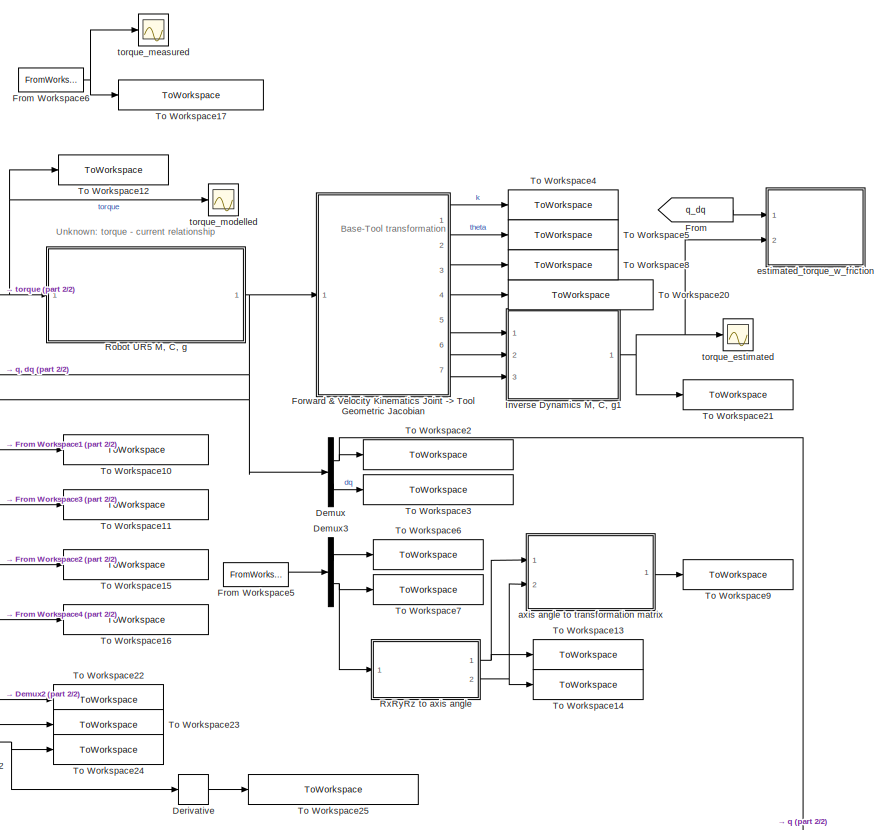
[diagram: root canvas - part 1/2, right side, full height]
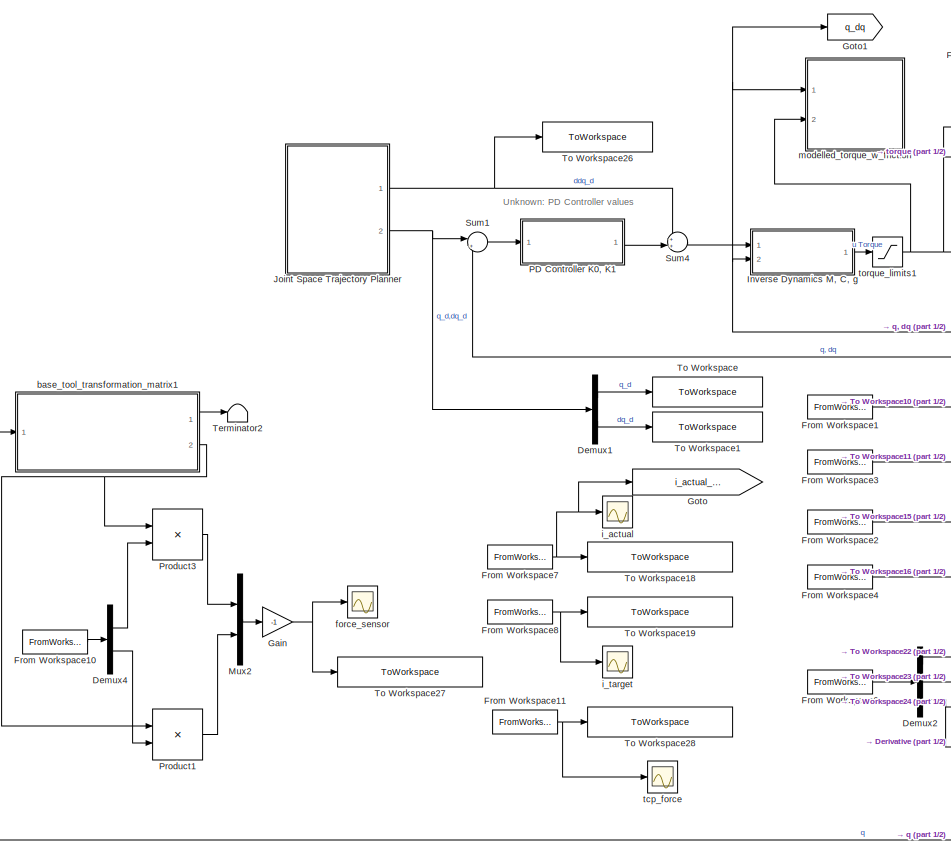
[diagram: root canvas - part 2/2, left side, full height]
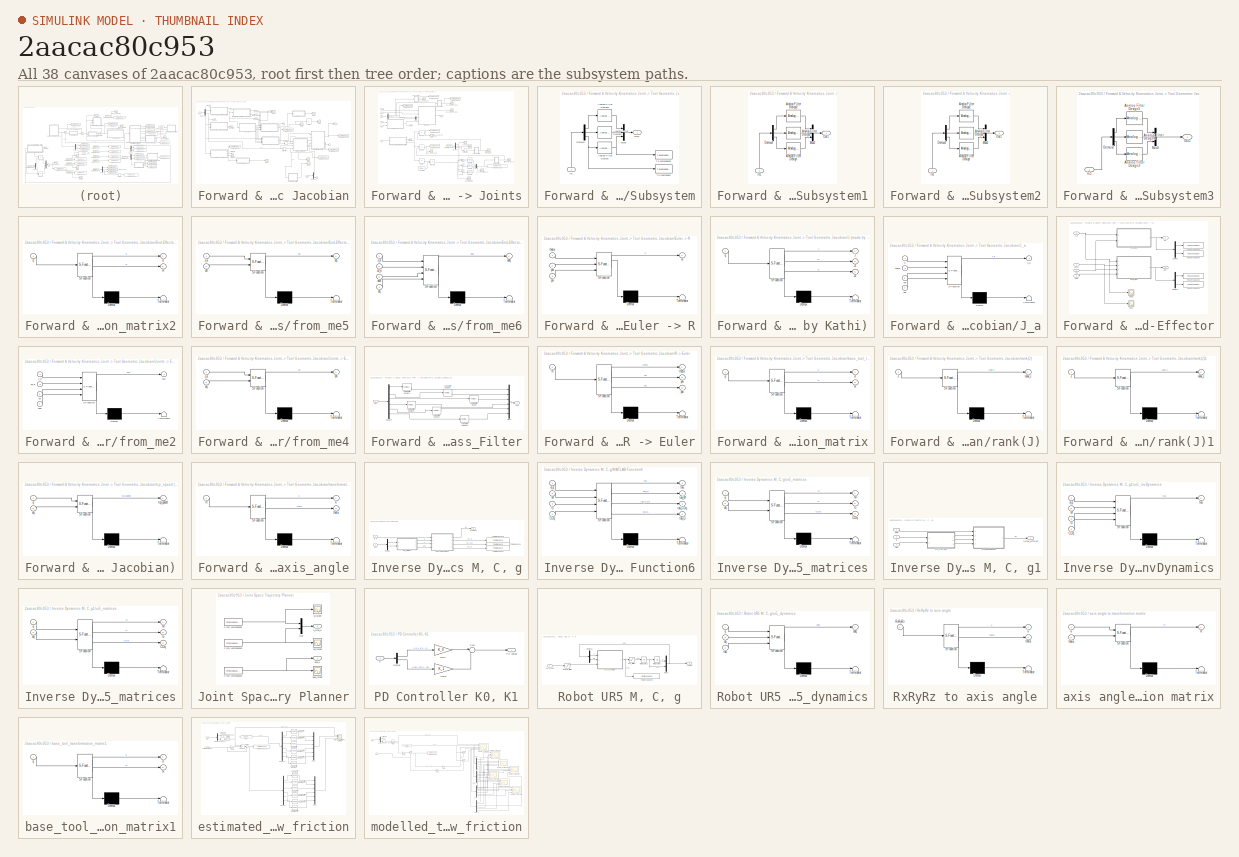
[diagram: thumbnail index - all 38 canvases of the model, root first then tree order]
MODEL slx_2aacac80c953
KIND model
CONFIG InitFcn = Initialization
CONFIG PreLoadFcn = Initialization
BLOCK [Demux] Demux
  DisplayOption = bar
  Outputs = [6 6]
  Ports = [1, 2]
BLOCK [Demux] Demux1
  DisplayOption = bar
  Outputs = [6 6]
  Ports = [1, 2]
BLOCK [Demux] Demux2
  DisplayOption = bar
  Outputs = [3 3 3]
  Ports = [1, 3]
BLOCK [Demux] Demux3
  DisplayOption = bar
  Outputs = [3 3]
  Ports = [1, 2]
BLOCK [Demux] Demux4
  Commented = on
  DisplayOption = bar
  Outputs = [3 3 ]
  Ports = [1, 2]
BLOCK [Derivative] Derivative
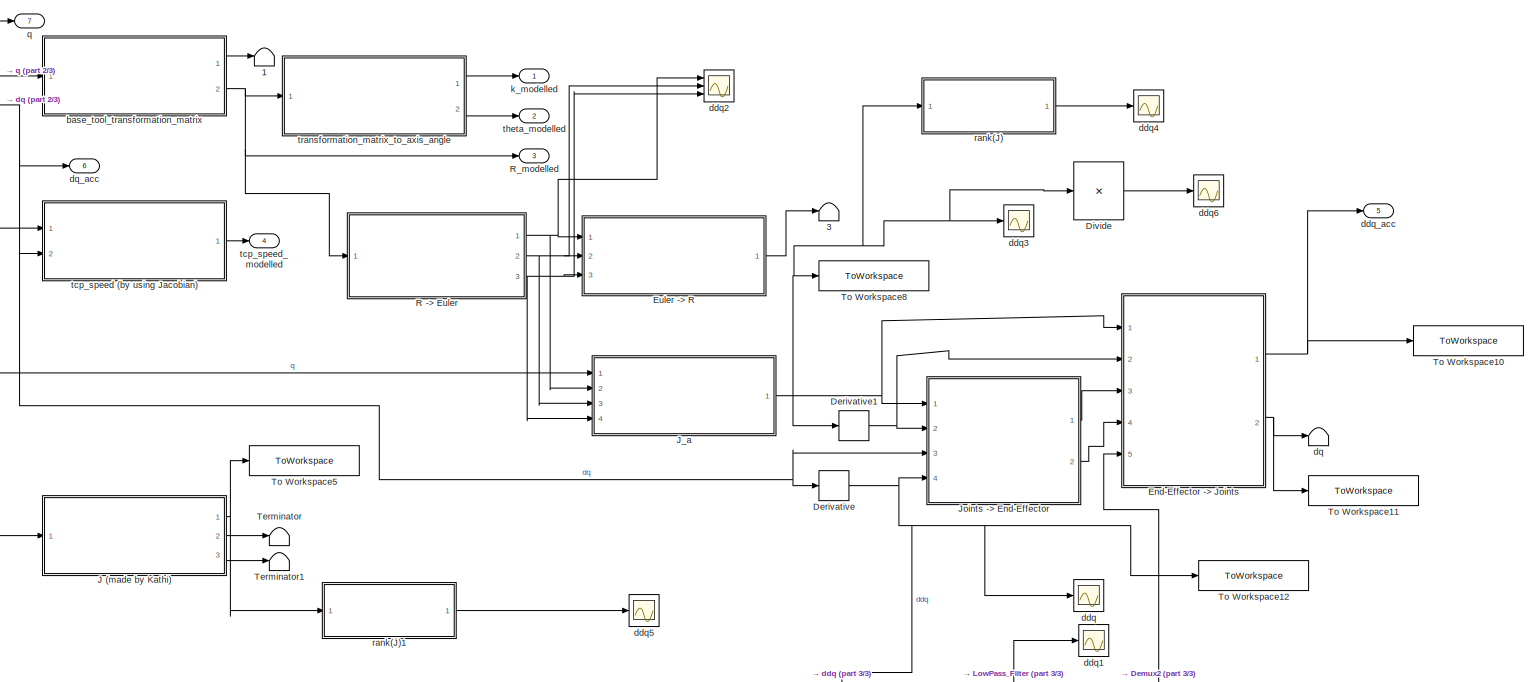
[diagram: Forward & Velocity Kinematics Joint -> Tool Geometric Jacobian - part 1/3, most of the canvas]
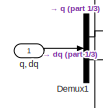
[diagram: Forward & Velocity Kinematics Joint -> Tool Geometric Jacobian - part 2/3, top left region]
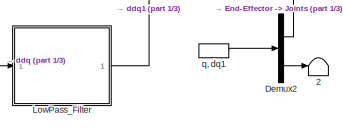
[diagram: Forward & Velocity Kinematics Joint -> Tool Geometric Jacobian - part 3/3, bottom right region]
BLOCK [SubSystem] Forward & Velocity Kinematics Joint -> Tool Geometric Jacobian
  FunctionWithSeparateData = off
  MaskHideContents = off
  MinAlgLoopOccurrences = off
  Opaque = off
  Ports = [1, 7]
  PropExecContextOutsideSubsystem = off
  RTWSystemCode = Auto
  RequestExecContextInheritance = off
BLOCK [Terminator] Forward & Velocity Kinematics Joint -> Tool Geometric Jacobian/1
BLOCK [Terminator] Forward & Velocity Kinematics Joint -> Tool Geometric Jacobian/2
BLOCK [Terminator] Forward & Velocity Kinematics Joint -> Tool Geometric Jacobian/3
BLOCK [Demux] Forward & Velocity Kinematics Joint -> Tool Geometric Jacobian/Demux1
  DisplayOption = bar
  Outputs = [6 6]
  Ports = [1, 2]
BLOCK [Demux] Forward & Velocity Kinematics Joint -> Tool Geometric Jacobian/Demux2
  DisplayOption = bar
  Outputs = [6 6]
  Ports = [1, 2]
BLOCK [Derivative] Forward & Velocity Kinematics Joint -> Tool Geometric Jacobian/Derivative
BLOCK [Derivative] Forward & Velocity Kinematics Joint -> Tool Geometric Jacobian/Derivative1
BLOCK [Product] Forward & Velocity Kinematics Joint -> Tool Geometric Jacobian/Divide
  InputSameDT = off
  Inputs = /
  Multiplication = Matrix(*)
  OutDataTypeStr = Inherit: Inherit via internal rule
  Ports = [1, 1]
  RndMeth = Floor
  SaturateOnIntegerOverflow = off
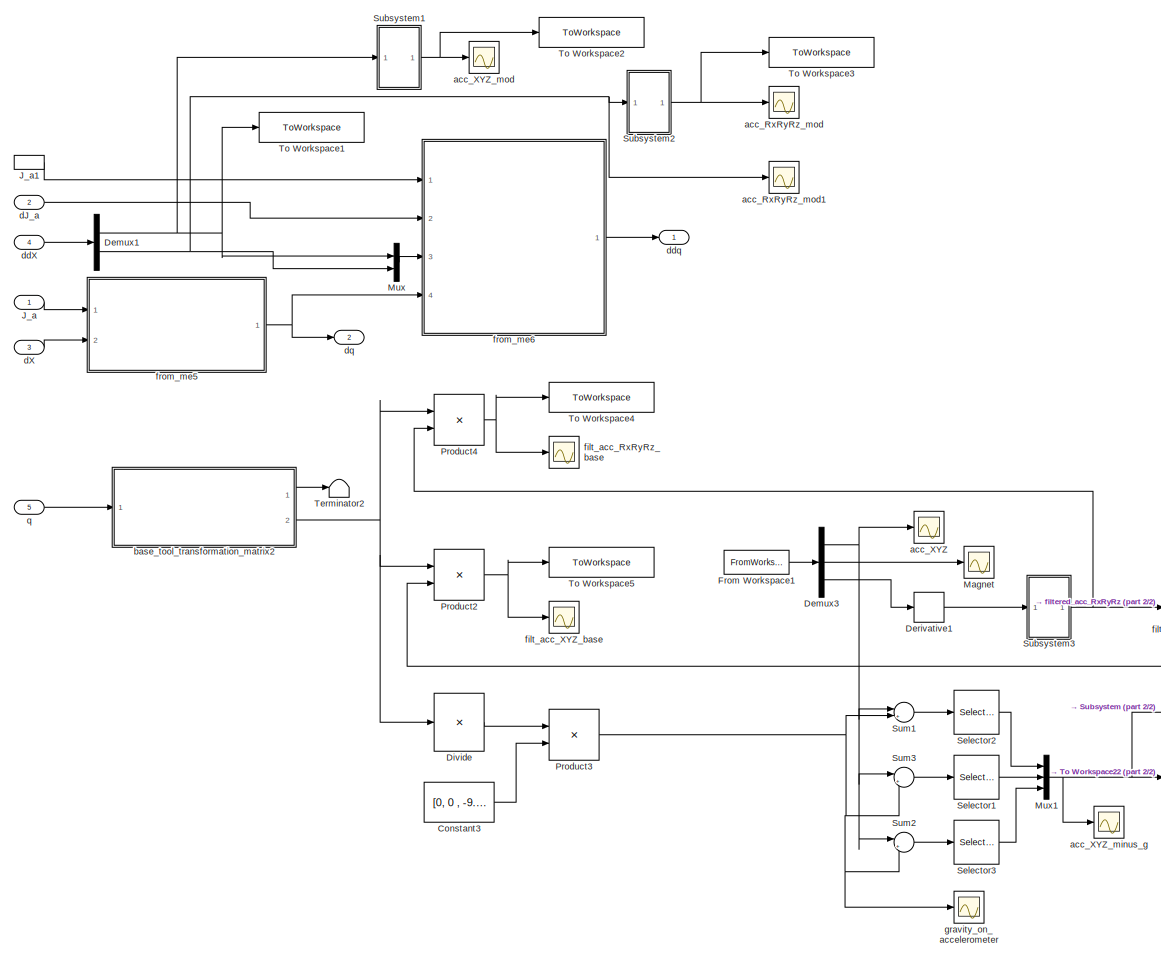
[diagram: Forward & Velocity Kinematics Joint -> Tool Geometric Jacobian/End-Effector -> Joints - part 1/2, most of the canvas]
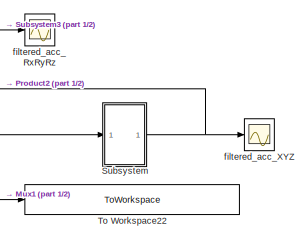
[diagram: Forward & Velocity Kinematics Joint -> Tool Geometric Jacobian/End-Effector -> Joints - part 2/2, bottom right region]
BLOCK [SubSystem] Forward & Velocity Kinematics Joint -> Tool Geometric Jacobian/End-Effector -> Joints
  FunctionWithSeparateData = off
  MaskHideContents = off
  MinAlgLoopOccurrences = off
  Opaque = off
  Ports = [5, 2]
  PropExecContextOutsideSubsystem = off
  RTWSystemCode = Auto
  RequestExecContextInheritance = off
BLOCK [Constant] Forward & Velocity Kinematics Joint -> Tool Geometric Jacobian/End-Effector -> Joints/Constant3
  Value = [0, 0 , -9.8]
BLOCK [Demux] Forward & Velocity Kinematics Joint -> Tool Geometric Jacobian/End-Effector -> Joints/Demux1
  DisplayOption = bar
  Outputs = [3 3]
  Ports = [1, 2]
BLOCK [Demux] Forward & Velocity Kinematics Joint -> Tool Geometric Jacobian/End-Effector -> Joints/Demux3
  DisplayOption = bar
  Outputs = [3 3 3]
  Ports = [1, 3]
BLOCK [Derivative] Forward & Velocity Kinematics Joint -> Tool Geometric Jacobian/End-Effector -> Joints/Derivative1
BLOCK [Product] Forward & Velocity Kinematics Joint -> Tool Geometric Jacobian/End-Effector -> Joints/Divide
  InputSameDT = off
  Inputs = /
  Multiplication = Matrix(*)
  OutDataTypeStr = Inherit: Inherit via internal rule
  Ports = [1, 1]
  RndMeth = Floor
  SaturateOnIntegerOverflow = off
BLOCK [FromWorkspace] Forward & Velocity Kinematics Joint -> Tool Geometric Jacobian/End-Effector -> Joints/From Workspace1
  OutputAfterFinalValue = Setting to zero
  SampleTime = 0
  VariableName = acceleration
  ZeroCross = on
BLOCK [Inport] Forward & Velocity Kinematics Joint -> Tool Geometric Jacobian/End-Effector -> Joints/J_a
  IconDisplay = Port number
BLOCK [InportShadow] Forward & Velocity Kinematics Joint -> Tool Geometric Jacobian/End-Effector -> Joints/J_a1
  IconDisplay = Port number
  LatchByDelayingOutsideSignal = off
  LatchInputForFeedbackSignals = off
BLOCK [Scope] Forward & Velocity Kinematics Joint -> Tool Geometric Jacobian/End-Effector -> Joints/Magnet
  DataFormat = StructureWithTime
  Floating = off
  LegendLocations = 0.894     0.89853    0.082678    0.062339
  LimitDataPoints = off
  NumInputPorts = 1
  Ports = [1]
  SampleTime = 0
  SaveName = ScopeData22
  ShowLegends = on
BLOCK [Mux] Forward & Velocity Kinematics Joint -> Tool Geometric Jacobian/End-Effector -> Joints/Mux
  DisplayOption = bar
  Inputs = [3 3]
  Ports = [2, 1]
BLOCK [Mux] Forward & Velocity Kinematics Joint -> Tool Geometric Jacobian/End-Effector -> Joints/Mux1
  DisplayOption = bar
  Inputs = [1 1 1]
  Ports = [3, 1]
BLOCK [Product] Forward & Velocity Kinematics Joint -> Tool Geometric Jacobian/End-Effector -> Joints/Product2
  InputSameDT = off
  Multiplication = Matrix(*)
  OutDataTypeStr = Inherit: Inherit via internal rule
  Ports = [2, 1]
  RndMeth = Floor
  SaturateOnIntegerOverflow = off
BLOCK [Product] Forward & Velocity Kinematics Joint -> Tool Geometric Jacobian/End-Effector -> Joints/Product3
  InputSameDT = off
  Multiplication = Matrix(*)
  OutDataTypeStr = Inherit: Inherit via internal rule
  Ports = [2, 1]
  RndMeth = Floor
  SaturateOnIntegerOverflow = off
BLOCK [Product] Forward & Velocity Kinematics Joint -> Tool Geometric Jacobian/End-Effector -> Joints/Product4
  InputSameDT = off
  Multiplication = Matrix(*)
  OutDataTypeStr = Inherit: Inherit via internal rule
  Ports = [2, 1]
  RndMeth = Floor
  SaturateOnIntegerOverflow = off
BLOCK [Selector] Forward & Velocity Kinematics Joint -> Tool Geometric Jacobian/End-Effector -> Joints/Selector1
  IndexOptions = Index vector (dialog)
  Indices = [2]
  InputPortWidth = 3
  OutputSizes = 1
  Ports = [1, 1]
BLOCK [Selector] Forward & Velocity Kinematics Joint -> Tool Geometric Jacobian/End-Effector -> Joints/Selector2
  IndexOptions = Index vector (dialog)
  Indices = [1]
  InputPortWidth = 3
  OutputSizes = 1
  Ports = [1, 1]
BLOCK [Selector] Forward & Velocity Kinematics Joint -> Tool Geometric Jacobian/End-Effector -> Joints/Selector3
  IndexOptions = Index vector (dialog)
  Indices = [3]
  InputPortWidth = 3
  OutputSizes = 1
  Ports = [1, 1]
BLOCK [SubSystem] Forward & Velocity Kinematics Joint -> Tool Geometric Jacobian/End-Effector -> Joints/Subsystem
  FunctionWithSeparateData = off
  MaskHideContents = off
  MinAlgLoopOccurrences = off
  Opaque = off
  Ports = [1, 1]
  PropExecContextOutsideSubsystem = off
  RTWSystemCode = Auto
  RequestExecContextInheritance = off
BLOCK [Reference] Forward & Velocity Kinematics Joint -> Tool Geometric Jacobian/End-Effector -> Joints/Subsystem/Analog Filter Design  REF=dsparch4/Analog
Filter Design
  N = 8
  Ports = [1, 1]
  Rp = 2
  Rs = 40
  SourceBlock = dsparch4/Analog\nFilter Design
  SourceType = Analog Filter Design
  Whi = 80
  Wlo = 30
  filttype = Lowpass
  method = Butterworth
BLOCK [Reference] Forward & Velocity Kinematics Joint -> Tool Geometric Jacobian/End-Effector -> Joints/Subsystem/Analog Filter Design1  REF=dsparch4/Analog
Filter Design
  N = 8
  Ports = [1, 1]
  Rp = 2
  Rs = 40
  SourceBlock = dsparch4/Analog\nFilter Design
  SourceType = Analog Filter Design
  Whi = 80
  Wlo = 30
  filttype = Lowpass
  method = Butterworth
BLOCK [Reference] Forward & Velocity Kinematics Joint -> Tool Geometric Jacobian/End-Effector -> Joints/Subsystem/Analog Filter Design2  REF=dsparch4/Analog
Filter Design
  N = 8
  Ports = [1, 1]
  Rp = 2
  Rs = 40
  SourceBlock = dsparch4/Analog\nFilter Design
  SourceType = Analog Filter Design
  Whi = 80
  Wlo = 30
  filttype = Lowpass
  method = Butterworth
BLOCK [Demux] Forward & Velocity Kinematics Joint -> Tool Geometric Jacobian/End-Effector -> Joints/Subsystem/Demux4
  DisplayOption = bar
  Outputs = [1 1 1]
  Ports = [1, 3]
BLOCK [Inport] Forward & Velocity Kinematics Joint -> Tool Geometric Jacobian/End-Effector -> Joints/Subsystem/In1
  IconDisplay = Port number
BLOCK [Mux] Forward & Velocity Kinematics Joint -> Tool Geometric Jacobian/End-Effector -> Joints/Subsystem/Mux2
  DisplayOption = bar
  Inputs = [1 1 1]
  Ports = [3, 1]
BLOCK [Outport] Forward & Velocity Kinematics Joint -> Tool Geometric Jacobian/End-Effector -> Joints/Subsystem/Out1
  IconDisplay = Port number
BLOCK [ToWorkspace] Forward & Velocity Kinematics Joint -> Tool Geometric Jacobian/End-Effector -> Joints/Subsystem/To Workspace
  MaxDataPoints = inf
  Ports = [1]
  SampleTime = -1
  SaveFormat = Timeseries
  VariableName = unfiltered
BLOCK [ToWorkspace] Forward & Velocity Kinematics Joint -> Tool Geometric Jacobian/End-Effector -> Joints/Subsystem/To Workspace1
  MaxDataPoints = inf
  Ports = [1]
  SampleTime = -1
  SaveFormat = Timeseries
  VariableName = filtered
BLOCK [SubSystem] Forward & Velocity Kinematics Joint -> Tool Geometric Jacobian/End-Effector -> Joints/Subsystem1
  FunctionWithSeparateData = off
  MaskHideContents = off
  MinAlgLoopOccurrences = off
  Opaque = off
  Ports = [1, 1]
  PropExecContextOutsideSubsystem = off
  RTWSystemCode = Auto
  RequestExecContextInheritance = off
BLOCK [Reference] Forward & Velocity Kinematics Joint -> Tool Geometric Jacobian/End-Effector -> Joints/Subsystem1/Analog Filter Design  REF=dsparch4/Analog
Filter Design
  N = 8
  Ports = [1, 1]
  Rp = 2
  Rs = 40
  SourceBlock = dsparch4/Analog\nFilter Design
  SourceType = Analog Filter Design
  Whi = 80
  Wlo = 30
  filttype = Lowpass
  method = Butterworth
BLOCK [Reference] Forward & Velocity Kinematics Joint -> Tool Geometric Jacobian/End-Effector -> Joints/Subsystem1/Analog Filter Design1  REF=dsparch4/Analog
Filter Design
  N = 8
  Ports = [1, 1]
  Rp = 2
  Rs = 40
  SourceBlock = dsparch4/Analog\nFilter Design
  SourceType = Analog Filter Design
  Whi = 80
  Wlo = 30
  filttype = Lowpass
  method = Butterworth
BLOCK [Reference] Forward & Velocity Kinematics Joint -> Tool Geometric Jacobian/End-Effector -> Joints/Subsystem1/Analog Filter Design2  REF=dsparch4/Analog
Filter Design
  N = 8
  Ports = [1, 1]
  Rp = 2
  Rs = 40
  SourceBlock = dsparch4/Analog\nFilter Design
  SourceType = Analog Filter Design
  Whi = 80
  Wlo = 30
  filttype = Lowpass
  method = Butterworth
BLOCK [Demux] Forward & Velocity Kinematics Joint -> Tool Geometric Jacobian/End-Effector -> Joints/Subsystem1/Demux4
  DisplayOption = bar
  Outputs = [1 1 1]
  Ports = [1, 3]
BLOCK [Inport] Forward & Velocity Kinematics Joint -> Tool Geometric Jacobian/End-Effector -> Joints/Subsystem1/In1
  IconDisplay = Port number
BLOCK [Mux] Forward & Velocity Kinematics Joint -> Tool Geometric Jacobian/End-Effector -> Joints/Subsystem1/Mux2
  DisplayOption = bar
  Inputs = [1 1 1]
  Ports = [3, 1]
BLOCK [Outport] Forward & Velocity Kinematics Joint -> Tool Geometric Jacobian/End-Effector -> Joints/Subsystem1/Out1
  IconDisplay = Port number
BLOCK [SubSystem] Forward & Velocity Kinematics Joint -> Tool Geometric Jacobian/End-Effector -> Joints/Subsystem2
  FunctionWithSeparateData = off
  MaskHideContents = off
  MinAlgLoopOccurrences = off
  Opaque = off
  Ports = [1, 1]
  PropExecContextOutsideSubsystem = off
  RTWSystemCode = Auto
  RequestExecContextInheritance = off
BLOCK [Reference] Forward & Velocity Kinematics Joint -> Tool Geometric Jacobian/End-Effector -> Joints/Subsystem2/Analog Filter Design  REF=dsparch4/Analog
Filter Design
  N = 8
  Ports = [1, 1]
  Rp = 2
  Rs = 40
  SourceBlock = dsparch4/Analog\nFilter Design
  SourceType = Analog Filter Design
  Whi = 80
  Wlo = 30
  filttype = Lowpass
  method = Butterworth
BLOCK [Reference] Forward & Velocity Kinematics Joint -> Tool Geometric Jacobian/End-Effector -> Joints/Subsystem2/Analog Filter Design1  REF=dsparch4/Analog
Filter Design
  N = 8
  Ports = [1, 1]
  Rp = 2
  Rs = 40
  SourceBlock = dsparch4/Analog\nFilter Design
  SourceType = Analog Filter Design
  Whi = 80
  Wlo = 30
  filttype = Lowpass
  method = Butterworth
BLOCK [Reference] Forward & Velocity Kinematics Joint -> Tool Geometric Jacobian/End-Effector -> Joints/Subsystem2/Analog Filter Design2  REF=dsparch4/Analog
Filter Design
  N = 8
  Ports = [1, 1]
  Rp = 2
  Rs = 40
  SourceBlock = dsparch4/Analog\nFilter Design
  SourceType = Analog Filter Design
  Whi = 80
  Wlo = 30
  filttype = Lowpass
  method = Butterworth
BLOCK [Demux] Forward & Velocity Kinematics Joint -> Tool Geometric Jacobian/End-Effector -> Joints/Subsystem2/Demux4
  DisplayOption = bar
  Outputs = [1 1 1]
  Ports = [1, 3]
BLOCK [Inport] Forward & Velocity Kinematics Joint -> Tool Geometric Jacobian/End-Effector -> Joints/Subsystem2/In1
  IconDisplay = Port number
BLOCK [Mux] Forward & Velocity Kinematics Joint -> Tool Geometric Jacobian/End-Effector -> Joints/Subsystem2/Mux2
  DisplayOption = bar
  Inputs = [1 1 1]
  Ports = [3, 1]
BLOCK [Outport] Forward & Velocity Kinematics Joint -> Tool Geometric Jacobian/End-Effector -> Joints/Subsystem2/Out1
  IconDisplay = Port number
BLOCK [SubSystem] Forward & Velocity Kinematics Joint -> Tool Geometric Jacobian/End-Effector -> Joints/Subsystem3
  FunctionWithSeparateData = off
  MaskHideContents = off
  MinAlgLoopOccurrences = off
  Opaque = off
  Ports = [1, 1]
  PropExecContextOutsideSubsystem = off
  RTWSystemCode = Auto
  RequestExecContextInheritance = off
BLOCK [Reference] Forward & Velocity Kinematics Joint -> Tool Geometric Jacobian/End-Effector -> Joints/Subsystem3/Analog Filter Design3  REF=dsparch4/Analog
Filter Design
  N = 8
  Ports = [1, 1]
  Rp = 2
  Rs = 40
  SourceBlock = dsparch4/Analog\nFilter Design
  SourceType = Analog Filter Design
  Whi = 80
  Wlo = 30
  filttype = Lowpass
  method = Butterworth
BLOCK [Reference] Forward & Velocity Kinematics Joint -> Tool Geometric Jacobian/End-Effector -> Joints/Subsystem3/Analog Filter Design4  REF=dsparch4/Analog
Filter Design
  N = 8
  Ports = [1, 1]
  Rp = 2
  Rs = 40
  SourceBlock = dsparch4/Analog\nFilter Design
  SourceType = Analog Filter Design
  Whi = 80
  Wlo = 30
  filttype = Lowpass
  method = Butterworth
BLOCK [Reference] Forward & Velocity Kinematics Joint -> Tool Geometric Jacobian/End-Effector -> Joints/Subsystem3/Analog Filter Design5  REF=dsparch4/Analog
Filter Design
  N = 8
  Ports = [1, 1]
  Rp = 2
  Rs = 40
  SourceBlock = dsparch4/Analog\nFilter Design
  SourceType = Analog Filter Design
  Whi = 80
  Wlo = 30
  filttype = Lowpass
  method = Butterworth
BLOCK [Demux] Forward & Velocity Kinematics Joint -> Tool Geometric Jacobian/End-Effector -> Joints/Subsystem3/Demux2
  DisplayOption = bar
  Outputs = [1 1 1]
  Ports = [1, 3]
BLOCK [Inport] Forward & Velocity Kinematics Joint -> Tool Geometric Jacobian/End-Effector -> Joints/Subsystem3/In1
  IconDisplay = Port number
BLOCK [Mux] Forward & Velocity Kinematics Joint -> Tool Geometric Jacobian/End-Effector -> Joints/Subsystem3/Mux3
  DisplayOption = bar
  Inputs = [1 1 1]
  Ports = [3, 1]
BLOCK [Outport] Forward & Velocity Kinematics Joint -> Tool Geometric Jacobian/End-Effector -> Joints/Subsystem3/Out1
  IconDisplay = Port number
BLOCK [Sum] Forward & Velocity Kinematics Joint -> Tool Geometric Jacobian/End-Effector -> Joints/Sum1
  IconShape = round
  InputSameDT = off
  Inputs = |++
  OutDataTypeStr = Inherit: Inherit via internal rule
  Ports = [2, 1]
  SaturateOnIntegerOverflow = off
BLOCK [Sum] Forward & Velocity Kinematics Joint -> Tool Geometric Jacobian/End-Effector -> Joints/Sum2
  IconShape = round
  InputSameDT = off
  Inputs = |++
  OutDataTypeStr = Inherit: Inherit via internal rule
  Ports = [2, 1]
  SaturateOnIntegerOverflow = off
BLOCK [Sum] Forward & Velocity Kinematics Joint -> Tool Geometric Jacobian/End-Effector -> Joints/Sum3
  IconShape = round
  InputSameDT = off
  Inputs = |++
  OutDataTypeStr = Inherit: Inherit via internal rule
  Ports = [2, 1]
  SaturateOnIntegerOverflow = off
BLOCK [Terminator] Forward & Velocity Kinematics Joint -> Tool Geometric Jacobian/End-Effector -> Joints/Terminator2
BLOCK [ToWorkspace] Forward & Velocity Kinematics Joint -> Tool Geometric Jacobian/End-Effector -> Joints/To Workspace1
  MaxDataPoints = inf
  Ports = [1]
  SampleTime = -1
  SaveFormat = Timeseries
  VariableName = ddX_linear1
BLOCK [ToWorkspace] Forward & Velocity Kinematics Joint -> Tool Geometric Jacobian/End-Effector -> Joints/To Workspace2
  MaxDataPoints = inf
  Ports = [1]
  SampleTime = -1
  SaveFormat = Timeseries
  VariableName = acc_XYZ_mod
BLOCK [ToWorkspace] Forward & Velocity Kinematics Joint -> Tool Geometric Jacobian/End-Effector -> Joints/To Workspace22
  MaxDataPoints = inf
  Ports = [1]
  SampleTime = -1
  SaveFormat = Timeseries
  VariableName = acceleration_xsens_gravity_compensation
BLOCK [ToWorkspace] Forward & Velocity Kinematics Joint -> Tool Geometric Jacobian/End-Effector -> Joints/To Workspace3
  MaxDataPoints = inf
  Ports = [1]
  SampleTime = -1
  SaveFormat = Timeseries
  VariableName = acc_RxRyRz_mod
BLOCK [ToWorkspace] Forward & Velocity Kinematics Joint -> Tool Geometric Jacobian/End-Effector -> Joints/To Workspace4
  MaxDataPoints = inf
  Ports = [1]
  SampleTime = -1
  SaveFormat = Timeseries
  VariableName = acc_RxRyRz_base
BLOCK [ToWorkspace] Forward & Velocity Kinematics Joint -> Tool Geometric Jacobian/End-Effector -> Joints/To Workspace5
  MaxDataPoints = inf
  Ports = [1]
  SampleTime = -1
  SaveFormat = Timeseries
  VariableName = acc_XYZ_base
BLOCK [Scope] Forward & Velocity Kinematics Joint -> Tool Geometric Jacobian/End-Effector -> Joints/acc_RxRyRz_mod
  DataFormat = StructureWithTime
  Floating = off
  LimitDataPoints = off
  NumInputPorts = 1
  Ports = [1]
  SampleTime = 0
  SaveName = ScopeData34
  ShowLegends = on
  YMax = 3.5
  YMin = -3
BLOCK [Scope] Forward & Velocity Kinematics Joint -> Tool Geometric Jacobian/End-Effector -> Joints/acc_RxRyRz_mod1
  DataFormat = StructureWithTime
  Floating = off
  LimitDataPoints = off
  NumInputPorts = 1
  Ports = [1]
  SampleTime = 0
  SaveName = ScopeData6
  ShowLegends = on
  YMax = 3.5
  YMin = -3
BLOCK [Scope] Forward & Velocity Kinematics Joint -> Tool Geometric Jacobian/End-Effector -> Joints/acc_XYZ
  DataFormat = StructureWithTime
  Floating = off
  LegendLocations = 0.87033      0.8573     0.10113    0.086883
  LimitDataPoints = off
  NumInputPorts = 1
  Ports = [1]
  SampleTime = 0
  SaveName = ScopeData23
  ShowLegends = on
  YMax = 17.5
  YMin = -10
BLOCK [Scope] Forward & Velocity Kinematics Joint -> Tool Geometric Jacobian/End-Effector -> Joints/acc_XYZ_minus_g
  DataFormat = StructureWithTime
  Floating = off
  LegendLocations = 0.88235     0.85673    0.089122    0.088022
  LimitDataPoints = off
  NumInputPorts = 1
  Ports = [1]
  SampleTime = 0
  SaveName = ScopeData24
  ShowLegends = on
  YMax = 3
  YMin = -2.25
BLOCK [Scope] Forward & Velocity Kinematics Joint -> Tool Geometric Jacobian/End-Effector -> Joints/acc_XYZ_mod
  DataFormat = StructureWithTime
  Floating = off
  LimitDataPoints = off
  NumInputPorts = 1
  Ports = [1]
  SampleTime = 0
  SaveName = ScopeData4
  ShowLegends = on
  YMax = 3.5
  YMin = -3
BLOCK [SubSystem] Forward & Velocity Kinematics Joint -> Tool Geometric Jacobian/End-Effector -> Joints/base_tool_transformation_matrix2
  ErrorFcn = Stateflow.Translate.translate
  FunctionWithSeparateData = off
  MaskHideContents = off
  MinAlgLoopOccurrences = off
  Opaque = off
  PermitHierarchicalResolution = ExplicitOnly
  Ports = [1, 2]
  PropExecContextOutsideSubsystem = off
  RTWSystemCode = Auto
  RequestExecContextInheritance = off
  SFBlockType = MATLAB Function
  TreatAsAtomicUnit = on
BLOCK [Demux] Forward & Velocity Kinematics Joint -> Tool Geometric Jacobian/End-Effector -> Joints/base_tool_transformation_matrix2/ Demux 
  Outputs = 1
  Ports = [1, 1]
BLOCK [S-Function] Forward & Velocity Kinematics Joint -> Tool Geometric Jacobian/End-Effector -> Joints/base_tool_transformation_matrix2/ SFunction 
  EnableBusSupport = on
  FunctionName = sf_sfun
  PortCounts = [1 3]
  Ports = [1, 3]
  Tag = Stateflow S-Function JointSpaceControl_BestInertia 16
BLOCK [Terminator] Forward & Velocity Kinematics Joint -> Tool Geometric Jacobian/End-Effector -> Joints/base_tool_transformation_matrix2/ Terminator 
BLOCK [Outport] Forward & Velocity Kinematics Joint -> Tool Geometric Jacobian/End-Effector -> Joints/base_tool_transformation_matrix2/R
  IconDisplay = Port number
  Port = 2
BLOCK [Outport] Forward & Velocity Kinematics Joint -> Tool Geometric Jacobian/End-Effector -> Joints/base_tool_transformation_matrix2/d
  IconDisplay = Port number
BLOCK [Inport] Forward & Velocity Kinematics Joint -> Tool Geometric Jacobian/End-Effector -> Joints/base_tool_transformation_matrix2/q
  IconDisplay = Port number
BLOCK [Inport] Forward & Velocity Kinematics Joint -> Tool Geometric Jacobian/End-Effector -> Joints/dJ_a
  IconDisplay = Port number
  Port = 2
BLOCK [Inport] Forward & Velocity Kinematics Joint -> Tool Geometric Jacobian/End-Effector -> Joints/dX
  IconDisplay = Port number
  Port = 3
BLOCK [Inport] Forward & Velocity Kinematics Joint -> Tool Geometric Jacobian/End-Effector -> Joints/ddX
  IconDisplay = Port number
  Port = 4
BLOCK [Outport] Forward & Velocity Kinematics Joint -> Tool Geometric Jacobian/End-Effector -> Joints/ddq
  IconDisplay = Port number
BLOCK [Outport] Forward & Velocity Kinematics Joint -> Tool Geometric Jacobian/End-Effector -> Joints/dq
  IconDisplay = Port number
  Port = 2
BLOCK [Scope] Forward & Velocity Kinematics Joint -> Tool Geometric Jacobian/End-Effector -> Joints/filt_acc_RxRyRz_base
  DataFormat = StructureWithTime
  Floating = off
  LegendLocations = 0.85976     0.82532     0.10815     0.10731
  LimitDataPoints = off
  NumInputPorts = 1
  Ports = [1]
  SampleTime = 0
  SaveName = ScopeData21
  ShowLegends = on
  YMax = 3.5
  YMin = -3
BLOCK [Scope] Forward & Velocity Kinematics Joint -> Tool Geometric Jacobian/End-Effector -> Joints/filt_acc_XYZ_base
  DataFormat = StructureWithTime
  Floating = off
  LimitDataPoints = off
  NumInputPorts = 1
  Ports = [1]
  SampleTime = 0
  SaveName = ScopeData8
  ShowLegends = on
  YMax = 3.5
  YMin = -3
BLOCK [Scope] Forward & Velocity Kinematics Joint -> Tool Geometric Jacobian/End-Effector -> Joints/filtered_acc_RxRyRz
  DataFormat = StructureWithTime
  Floating = off
  LimitDataPoints = off
  NumInputPorts = 1
  Ports = [1]
  SampleTime = 0
  SaveName = ScopeData29
  ShowLegends = on
BLOCK [Scope] Forward & Velocity Kinematics Joint -> Tool Geometric Jacobian/End-Effector -> Joints/filtered_acc_XYZ
  DataFormat = StructureWithTime
  Floating = off
  LegendLocations = 0.85163     0.84998      0.1167    0.092165
  LimitDataPoints = off
  NumInputPorts = 1
  Ports = [1]
  SampleTime = 0
  SaveName = ScopeData25
  ShowLegends = on
  YMax = 3.5
  YMin = -3
BLOCK [SubSystem] Forward & Velocity Kinematics Joint -> Tool Geometric Jacobian/End-Effector -> Joints/from_me5
  ErrorFcn = Stateflow.Translate.translate
  FunctionWithSeparateData = off
  MaskHideContents = off
  MinAlgLoopOccurrences = off
  Opaque = off
  PermitHierarchicalResolution = ExplicitOnly
  Ports = [2, 1]
  PropExecContextOutsideSubsystem = off
  RTWSystemCode = Auto
  RequestExecContextInheritance = off
  SFBlockType = MATLAB Function
  TreatAsAtomicUnit = on
BLOCK [Demux] Forward & Velocity Kinematics Joint -> Tool Geometric Jacobian/End-Effector -> Joints/from_me5/ Demux 
  Outputs = 1
  Ports = [1, 1]
BLOCK [S-Function] Forward & Velocity Kinematics Joint -> Tool Geometric Jacobian/End-Effector -> Joints/from_me5/ SFunction 
  EnableBusSupport = on
  FunctionName = sf_sfun
  PortCounts = [2 2]
  Ports = [2, 2]
  Tag = Stateflow S-Function JointSpaceControl_BestInertia 21
BLOCK [Terminator] Forward & Velocity Kinematics Joint -> Tool Geometric Jacobian/End-Effector -> Joints/from_me5/ Terminator 
BLOCK [Inport] Forward & Velocity Kinematics Joint -> Tool Geometric Jacobian/End-Effector -> Joints/from_me5/J_a
  IconDisplay = Port number
BLOCK [Inport] Forward & Velocity Kinematics Joint -> Tool Geometric Jacobian/End-Effector -> Joints/from_me5/dX
  IconDisplay = Port number
  Port = 2
BLOCK [Outport] Forward & Velocity Kinematics Joint -> Tool Geometric Jacobian/End-Effector -> Joints/from_me5/dq
  IconDisplay = Port number
BLOCK [SubSystem] Forward & Velocity Kinematics Joint -> Tool Geometric Jacobian/End-Effector -> Joints/from_me6
  ErrorFcn = Stateflow.Translate.translate
  FunctionWithSeparateData = off
  MaskHideContents = off
  MinAlgLoopOccurrences = off
  Opaque = off
  PermitHierarchicalResolution = ExplicitOnly
  Ports = [4, 1]
  PropExecContextOutsideSubsystem = off
  RTWSystemCode = Auto
  RequestExecContextInheritance = off
  SFBlockType = MATLAB Function
  TreatAsAtomicUnit = on
BLOCK [Demux] Forward & Velocity Kinematics Joint -> Tool Geometric Jacobian/End-Effector -> Joints/from_me6/ Demux 
  Outputs = 1
  Ports = [1, 1]
BLOCK [S-Function] Forward & Velocity Kinematics Joint -> Tool Geometric Jacobian/End-Effector -> Joints/from_me6/ SFunction 
  EnableBusSupport = on
  FunctionName = sf_sfun
  PortCounts = [4 2]
  Ports = [4, 2]
  Tag = Stateflow S-Function JointSpaceControl_BestInertia 22
BLOCK [Terminator] Forward & Velocity Kinematics Joint -> Tool Geometric Jacobian/End-Effector -> Joints/from_me6/ Terminator 
BLOCK [Inport] Forward & Velocity Kinematics Joint -> Tool Geometric Jacobian/End-Effector -> Joints/from_me6/J_a
  IconDisplay = Port number
BLOCK [Inport] Forward & Velocity Kinematics Joint -> Tool Geometric Jacobian/End-Effector -> Joints/from_me6/dJ_a
  IconDisplay = Port number
  Port = 2
BLOCK [Inport] Forward & Velocity Kinematics Joint -> Tool Geometric Jacobian/End-Effector -> Joints/from_me6/ddX
  IconDisplay = Port number
  Port = 3
BLOCK [Outport] Forward & Velocity Kinematics Joint -> Tool Geometric Jacobian/End-Effector -> Joints/from_me6/ddq
  IconDisplay = Port number
BLOCK [Inport] Forward & Velocity Kinematics Joint -> Tool Geometric Jacobian/End-Effector -> Joints/from_me6/dq
  IconDisplay = Port number
  Port = 4
BLOCK [Scope] Forward & Velocity Kinematics Joint -> Tool Geometric Jacobian/End-Effector -> Joints/gravity_on_accelerometer
  DataFormat = StructureWithTime
  Floating = off
  LegendLocations = 0.87534     0.85673    0.096129    0.088022
  LimitDataPoints = off
  NumInputPorts = 1
  Ports = [1]
  SampleTime = 0
  SaveName = ScopeData14
  ShowLegends = on
  YMax = 9
  YMin = -6
BLOCK [Inport] Forward & Velocity Kinematics Joint -> Tool Geometric Jacobian/End-Effector -> Joints/q
  IconDisplay = Port number
  Port = 5
BLOCK [SubSystem] Forward & Velocity Kinematics Joint -> Tool Geometric Jacobian/Euler -> R
  ErrorFcn = Stateflow.Translate.translate
  FunctionWithSeparateData = off
  MaskHideContents = off
  MinAlgLoopOccurrences = off
  Opaque = off
  PermitHierarchicalResolution = ExplicitOnly
  Ports = [3, 1]
  PropExecContextOutsideSubsystem = off
  RTWSystemCode = Auto
  RequestExecContextInheritance = off
  SFBlockType = MATLAB Function
  TreatAsAtomicUnit = on
BLOCK [Demux] Forward & Velocity Kinematics Joint -> Tool Geometric Jacobian/Euler -> R/ Demux 
  Outputs = 1
  Ports = [1, 1]
BLOCK [S-Function] Forward & Velocity Kinematics Joint -> Tool Geometric Jacobian/Euler -> R/ SFunction 
  EnableBusSupport = on
  FunctionName = sf_sfun
  PortCounts = [3 2]
  Ports = [3, 2]
  Tag = Stateflow S-Function JointSpaceControl_BestInertia 18
BLOCK [Terminator] Forward & Velocity Kinematics Joint -> Tool Geometric Jacobian/Euler -> R/ Terminator 
BLOCK [Outport] Forward & Velocity Kinematics Joint -> Tool Geometric Jacobian/Euler -> R/R
  IconDisplay = Port number
BLOCK [Inport] Forward & Velocity Kinematics Joint -> Tool Geometric Jacobian/Euler -> R/phi
  IconDisplay = Port number
  Port = 2
BLOCK [Inport] Forward & Velocity Kinematics Joint -> Tool Geometric Jacobian/Euler -> R/psi
  IconDisplay = Port number
  Port = 3
BLOCK [Inport] Forward & Velocity Kinematics Joint -> Tool Geometric Jacobian/Euler -> R/theta
  IconDisplay = Port number
BLOCK [SubSystem] Forward & Velocity Kinematics Joint -> Tool Geometric Jacobian/J (made by Kathi)
  ErrorFcn = Stateflow.Translate.translate
  FunctionWithSeparateData = off
  MaskHideContents = off
  MinAlgLoopOccurrences = off
  Opaque = off
  PermitHierarchicalResolution = ExplicitOnly
  Ports = [1, 3]
  PropExecContextOutsideSubsystem = off
  RTWSystemCode = Auto
  RequestExecContextInheritance = off
  SFBlockType = MATLAB Function
  TreatAsAtomicUnit = on
BLOCK [Demux] Forward & Velocity Kinematics Joint -> Tool Geometric Jacobian/J (made by Kathi)/ Demux 
  Outputs = 1
  Ports = [1, 1]
BLOCK [S-Function] Forward & Velocity Kinematics Joint -> Tool Geometric Jacobian/J (made by Kathi)/ SFunction 
  EnableBusSupport = on
  FunctionName = sf_sfun
  PortCounts = [1 4]
  Ports = [1, 4]
  Tag = Stateflow S-Function JointSpaceControl_BestInertia 10
BLOCK [Terminator] Forward & Velocity Kinematics Joint -> Tool Geometric Jacobian/J (made by Kathi)/ Terminator 
BLOCK [Outport] Forward & Velocity Kinematics Joint -> Tool Geometric Jacobian/J (made by Kathi)/J
  IconDisplay = Port number
BLOCK [Outport] Forward & Velocity Kinematics Joint -> Tool Geometric Jacobian/J (made by Kathi)/J1
  IconDisplay = Port number
  Port = 2
BLOCK [Outport] Forward & Velocity Kinematics Joint -> Tool Geometric Jacobian/J (made by Kathi)/J2
  IconDisplay = Port number
  Port = 3
BLOCK [Inport] Forward & Velocity Kinematics Joint -> Tool Geometric Jacobian/J (made by Kathi)/q
  IconDisplay = Port number
BLOCK [SubSystem] Forward & Velocity Kinematics Joint -> Tool Geometric Jacobian/J_a
  ErrorFcn = Stateflow.Translate.translate
  FunctionWithSeparateData = off
  MaskHideContents = off
  MinAlgLoopOccurrences = off
  Opaque = off
  PermitHierarchicalResolution = ExplicitOnly
  Ports = [4, 1]
  PropExecContextOutsideSubsystem = off
  RTWSystemCode = Auto
  RequestExecContextInheritance = off
  SFBlockType = MATLAB Function
  TreatAsAtomicUnit = on
BLOCK [Demux] Forward & Velocity Kinematics Joint -> Tool Geometric Jacobian/J_a/ Demux 
  Outputs = 1
  Ports = [1, 1]
BLOCK [S-Function] Forward & Velocity Kinematics Joint -> Tool Geometric Jacobian/J_a/ SFunction 
  EnableBusSupport = on
  FunctionName = sf_sfun
  PortCounts = [4 2]
  Ports = [4, 2]
  Tag = Stateflow S-Function JointSpaceControl_BestInertia 11
BLOCK [Terminator] Forward & Velocity Kinematics Joint -> Tool Geometric Jacobian/J_a/ Terminator 
BLOCK [Outport] Forward & Velocity Kinematics Joint -> Tool Geometric Jacobian/J_a/J_a
  IconDisplay = Port number
BLOCK [Inport] Forward & Velocity Kinematics Joint -> Tool Geometric Jacobian/J_a/phi
  IconDisplay = Port number
  Port = 3
BLOCK [Inport] Forward & Velocity Kinematics Joint -> Tool Geometric Jacobian/J_a/psi
  IconDisplay = Port number
  Port = 4
BLOCK [Inport] Forward & Velocity Kinematics Joint -> Tool Geometric Jacobian/J_a/q
  IconDisplay = Port number
BLOCK [Inport] Forward & Velocity Kinematics Joint -> Tool Geometric Jacobian/J_a/theta
  IconDisplay = Port number
  Port = 2
BLOCK [SubSystem] Forward & Velocity Kinematics Joint -> Tool Geometric Jacobian/Joints -> End-Effector
  FunctionWithSeparateData = off
  MaskHideContents = off
  MinAlgLoopOccurrences = off
  Opaque = off
  Ports = [4, 2]
  PropExecContextOutsideSubsystem = off
  RTWSystemCode = Auto
  RequestExecContextInheritance = off
BLOCK [Demux] Forward & Velocity Kinematics Joint -> Tool Geometric Jacobian/Joints -> End-Effector/Demux
  DisplayOption = bar
  Outputs = [3 3]
  Ports = [1, 2]
BLOCK [Demux] Forward & Velocity Kinematics Joint -> Tool Geometric Jacobian/Joints -> End-Effector/Demux1
  DisplayOption = bar
  Outputs = [3 3]
  Ports = [1, 2]
BLOCK [Inport] Forward & Velocity Kinematics Joint -> Tool Geometric Jacobian/Joints -> End-Effector/J_a
  IconDisplay = Port number
BLOCK [ToWorkspace] Forward & Velocity Kinematics Joint -> Tool Geometric Jacobian/Joints -> End-Effector/To Workspace1
  MaxDataPoints = inf
  Ports = [1]
  SampleTime = -1
  SaveFormat = Timeseries
  VariableName = ddX_linear
BLOCK [ToWorkspace] Forward & Velocity Kinematics Joint -> Tool Geometric Jacobian/Joints -> End-Effector/To Workspace2
  MaxDataPoints = inf
  Ports = [1]
  SampleTime = -1
  SaveFormat = Timeseries
  VariableName = ddX_angular
BLOCK [ToWorkspace] Forward & Velocity Kinematics Joint -> Tool Geometric Jacobian/Joints -> End-Effector/To Workspace3
  MaxDataPoints = inf
  Ports = [1]
  SampleTime = -1
  SaveFormat = Timeseries
  VariableName = dX_linear
BLOCK [ToWorkspace] Forward & Velocity Kinematics Joint -> Tool Geometric Jacobian/Joints -> End-Effector/To Workspace4
  MaxDataPoints = inf
  Ports = [1]
  SampleTime = -1
  SaveFormat = Timeseries
  VariableName = dX_angular
BLOCK [Inport] Forward & Velocity Kinematics Joint -> Tool Geometric Jacobian/Joints -> End-Effector/dJ_a
  IconDisplay = Port number
  Port = 2
BLOCK [Outport] Forward & Velocity Kinematics Joint -> Tool Geometric Jacobian/Joints -> End-Effector/dX
  IconDisplay = Port number
BLOCK [Outport] Forward & Velocity Kinematics Joint -> Tool Geometric Jacobian/Joints -> End-Effector/ddX
  IconDisplay = Port number
  Port = 2
BLOCK [Inport] Forward & Velocity Kinematics Joint -> Tool Geometric Jacobian/Joints -> End-Effector/ddq
  IconDisplay = Port number
  Port = 4
BLOCK [Scope] Forward & Velocity Kinematics Joint -> Tool Geometric Jacobian/Joints -> End-Effector/ddq1
  DataFormat = StructureWithTime
  Floating = off
  LimitDataPoints = off
  NumInputPorts = 1
  Ports = [1]
  SampleTime = 0
  SaveName = ScopeData36
  ShowLegends = on
BLOCK [Scope] Forward & Velocity Kinematics Joint -> Tool Geometric Jacobian/Joints -> End-Effector/ddq6
  DataFormat = StructureWithTime
  Floating = off
  LimitDataPoints = off
  NumInputPorts = 1
  Ports = [1]
  SampleTime = 0
  SaveName = ScopeData26
  ShowLegends = on
BLOCK [Inport] Forward & Velocity Kinematics Joint -> Tool Geometric Jacobian/Joints -> End-Effector/dq
  IconDisplay = Port number
  Port = 3
BLOCK [SubSystem] Forward & Velocity Kinematics Joint -> Tool Geometric Jacobian/Joints -> End-Effector/from_me2
  ErrorFcn = Stateflow.Translate.translate
  FunctionWithSeparateData = off
  MaskHideContents = off
  MinAlgLoopOccurrences = off
  Opaque = off
  PermitHierarchicalResolution = ExplicitOnly
  Ports = [4, 1]
  PropExecContextOutsideSubsystem = off
  RTWSystemCode = Auto
  RequestExecContextInheritance = off
  SFBlockType = MATLAB Function
  TreatAsAtomicUnit = on
BLOCK [Demux] Forward & Velocity Kinematics Joint -> Tool Geometric Jacobian/Joints -> End-Effector/from_me2/ Demux 
  Outputs = 1
  Ports = [1, 1]
BLOCK [S-Function] Forward & Velocity Kinematics Joint -> Tool Geometric Jacobian/Joints -> End-Effector/from_me2/ SFunction 
  EnableBusSupport = on
  FunctionName = sf_sfun
  PortCounts = [4 2]
  Ports = [4, 2]
  Tag = Stateflow S-Function JointSpaceControl_BestInertia 19
BLOCK [Terminator] Forward & Velocity Kinematics Joint -> Tool Geometric Jacobian/Joints -> End-Effector/from_me2/ Terminator 
BLOCK [Inport] Forward & Velocity Kinematics Joint -> Tool Geometric Jacobian/Joints -> End-Effector/from_me2/J_a
  IconDisplay = Port number
BLOCK [Inport] Forward & Velocity Kinematics Joint -> Tool Geometric Jacobian/Joints -> End-Effector/from_me2/dJ_a
  IconDisplay = Port number
  Port = 2
BLOCK [Outport] Forward & Velocity Kinematics Joint -> Tool Geometric Jacobian/Joints -> End-Effector/from_me2/ddX
  IconDisplay = Port number
BLOCK [Inport] Forward & Velocity Kinematics Joint -> Tool Geometric Jacobian/Joints -> End-Effector/from_me2/ddq
  IconDisplay = Port number
  Port = 4
BLOCK [Inport] Forward & Velocity Kinematics Joint -> Tool Geometric Jacobian/Joints -> End-Effector/from_me2/dq
  IconDisplay = Port number
  Port = 3
BLOCK [SubSystem] Forward & Velocity Kinematics Joint -> Tool Geometric Jacobian/Joints -> End-Effector/from_me4
  ErrorFcn = Stateflow.Translate.translate
  FunctionWithSeparateData = off
  MaskHideContents = off
  MinAlgLoopOccurrences = off
  Opaque = off
  PermitHierarchicalResolution = ExplicitOnly
  Ports = [2, 1]
  PropExecContextOutsideSubsystem = off
  RTWSystemCode = Auto
  RequestExecContextInheritance = off
  SFBlockType = MATLAB Function
  TreatAsAtomicUnit = on
BLOCK [Demux] Forward & Velocity Kinematics Joint -> Tool Geometric Jacobian/Joints -> End-Effector/from_me4/ Demux 
  Outputs = 1
  Ports = [1, 1]
BLOCK [S-Function] Forward & Velocity Kinematics Joint -> Tool Geometric Jacobian/Joints -> End-Effector/from_me4/ SFunction 
  EnableBusSupport = on
  FunctionName = sf_sfun
  PortCounts = [2 2]
  Ports = [2, 2]
  Tag = Stateflow S-Function JointSpaceControl_BestInertia 20
BLOCK [Terminator] Forward & Velocity Kinematics Joint -> Tool Geometric Jacobian/Joints -> End-Effector/from_me4/ Terminator 
BLOCK [Inport] Forward & Velocity Kinematics Joint -> Tool Geometric Jacobian/Joints -> End-Effector/from_me4/J_a
  IconDisplay = Port number
BLOCK [Outport] Forward & Velocity Kinematics Joint -> Tool Geometric Jacobian/Joints -> End-Effector/from_me4/dX
  IconDisplay = Port number
BLOCK [Inport] Forward & Velocity Kinematics Joint -> Tool Geometric Jacobian/Joints -> End-Effector/from_me4/dq
  IconDisplay = Port number
  Port = 2
BLOCK [SubSystem] Forward & Velocity Kinematics Joint -> Tool Geometric Jacobian/LowPass_Filter
  FunctionWithSeparateData = off
  MaskHideContents = off
  MinAlgLoopOccurrences = off
  Opaque = off
  Ports = [1, 1]
  PropExecContextOutsideSubsystem = off
  RTWSystemCode = Auto
  RequestExecContextInheritance = off
BLOCK [Reference] Forward & Velocity Kinematics Joint -> Tool Geometric Jacobian/LowPass_Filter/Analog Filter Design  REF=dsparch4/Analog
Filter Design
  N = 3
  Ports = [1, 1]
  Rp = 2
  Rs = 40
  SourceBlock = dsparch4/Analog\nFilter Design
  SourceType = Analog Filter Design
  Whi = 80
  Wlo = 30
  filttype = Lowpass
  method = Butterworth
BLOCK [Reference] Forward & Velocity Kinematics Joint -> Tool Geometric Jacobian/LowPass_Filter/Analog Filter Design1  REF=dsparch4/Analog
Filter Design
  N = 3
  Ports = [1, 1]
  Rp = 2
  Rs = 40
  SourceBlock = dsparch4/Analog\nFilter Design
  SourceType = Analog Filter Design
  Whi = 80
  Wlo = 30
  filttype = Lowpass
  method = Butterworth
BLOCK [Reference] Forward & Velocity Kinematics Joint -> Tool Geometric Jacobian/LowPass_Filter/Analog Filter Design2  REF=dsparch4/Analog
Filter Design
  N = 3
  Ports = [1, 1]
  Rp = 2
  Rs = 40
  SourceBlock = dsparch4/Analog\nFilter Design
  SourceType = Analog Filter Design
  Whi = 80
  Wlo = 30
  filttype = Lowpass
  method = Butterworth
BLOCK [Reference] Forward & Velocity Kinematics Joint -> Tool Geometric Jacobian/LowPass_Filter/Analog Filter Design3  REF=dsparch4/Analog
Filter Design
  N = 3
  Ports = [1, 1]
  Rp = 2
  Rs = 40
  SourceBlock = dsparch4/Analog\nFilter Design
  SourceType = Analog Filter Design
  Whi = 80
  Wlo = 30
  filttype = Lowpass
  method = Butterworth
BLOCK [Reference] Forward & Velocity Kinematics Joint -> Tool Geometric Jacobian/LowPass_Filter/Analog Filter Design4  REF=dsparch4/Analog
Filter Design
  N = 3
  Ports = [1, 1]
  Rp = 2
  Rs = 40
  SourceBlock = dsparch4/Analog\nFilter Design
  SourceType = Analog Filter Design
  Whi = 80
  Wlo = 30
  filttype = Lowpass
  method = Butterworth
BLOCK [Reference] Forward & Velocity Kinematics Joint -> Tool Geometric Jacobian/LowPass_Filter/Analog Filter Design5  REF=dsparch4/Analog
Filter Design
  N = 3
  Ports = [1, 1]
  Rp = 2
  Rs = 40
  SourceBlock = dsparch4/Analog\nFilter Design
  SourceType = Analog Filter Design
  Whi = 80
  Wlo = 30
  filttype = Lowpass
  method = Butterworth
BLOCK [Demux] Forward & Velocity Kinematics Joint -> Tool Geometric Jacobian/LowPass_Filter/Demux4
  DisplayOption = bar
  Outputs = [1 1 1 1 1 1]
  Ports = [1, 6]
BLOCK [Inport] Forward & Velocity Kinematics Joint -> Tool Geometric Jacobian/LowPass_Filter/In1
  IconDisplay = Port number
BLOCK [Mux] Forward & Velocity Kinematics Joint -> Tool Geometric Jacobian/LowPass_Filter/Mux2
  DisplayOption = bar
  Inputs = [1 1 1 1 1 1]
  Ports = [6, 1]
BLOCK [Outport] Forward & Velocity Kinematics Joint -> Tool Geometric Jacobian/LowPass_Filter/Out1
  IconDisplay = Port number
BLOCK [SubSystem] Forward & Velocity Kinematics Joint -> Tool Geometric Jacobian/R -> Euler
  ErrorFcn = Stateflow.Translate.translate
  FunctionWithSeparateData = off
  MaskHideContents = off
  MinAlgLoopOccurrences = off
  Opaque = off
  PermitHierarchicalResolution = ExplicitOnly
  Ports = [1, 3]
  PropExecContextOutsideSubsystem = off
  RTWSystemCode = Auto
  RequestExecContextInheritance = off
  SFBlockType = MATLAB Function
  TreatAsAtomicUnit = on
BLOCK [Demux] Forward & Velocity Kinematics Joint -> Tool Geometric Jacobian/R -> Euler/ Demux 
  Outputs = 1
  Ports = [1, 1]
BLOCK [S-Function] Forward & Velocity Kinematics Joint -> Tool Geometric Jacobian/R -> Euler/ SFunction 
  EnableBusSupport = on
  FunctionName = sf_sfun
  PortCounts = [1 4]
  Ports = [1, 4]
  Tag = Stateflow S-Function JointSpaceControl_BestInertia 5
BLOCK [Terminator] Forward & Velocity Kinematics Joint -> Tool Geometric Jacobian/R -> Euler/ Terminator 
BLOCK [Inport] Forward & Velocity Kinematics Joint -> Tool Geometric Jacobian/R -> Euler/R
  IconDisplay = Port number
BLOCK [Outport] Forward & Velocity Kinematics Joint -> Tool Geometric Jacobian/R -> Euler/phi
  IconDisplay = Port number
  Port = 2
BLOCK [Outport] Forward & Velocity Kinematics Joint -> Tool Geometric Jacobian/R -> Euler/psi
  IconDisplay = Port number
  Port = 3
BLOCK [Outport] Forward & Velocity Kinematics Joint -> Tool Geometric Jacobian/R -> Euler/theta
  IconDisplay = Port number
BLOCK [Outport] Forward & Velocity Kinematics Joint -> Tool Geometric Jacobian/R_modelled
  IconDisplay = Port number
  Port = 3
BLOCK [Terminator] Forward & Velocity Kinematics Joint -> Tool Geometric Jacobian/Terminator
BLOCK [Terminator] Forward & Velocity Kinematics Joint -> Tool Geometric Jacobian/Terminator1
BLOCK [ToWorkspace] Forward & Velocity Kinematics Joint -> Tool Geometric Jacobian/To Workspace10
  MaxDataPoints = inf
  Ports = [1]
  SampleTime = -1
  SaveFormat = Timeseries
  VariableName = ddq_acc
BLOCK [ToWorkspace] Forward & Velocity Kinematics Joint -> Tool Geometric Jacobian/To Workspace11
  MaxDataPoints = inf
  Ports = [1]
  SampleTime = -1
  SaveFormat = Timeseries
  VariableName = dq_acc
BLOCK [ToWorkspace] Forward & Velocity Kinematics Joint -> Tool Geometric Jacobian/To Workspace12
  MaxDataPoints = inf
  Ports = [1]
  SampleTime = -1
  SaveFormat = Timeseries
  VariableName = ddq_mod
BLOCK [ToWorkspace] Forward & Velocity Kinematics Joint -> Tool Geometric Jacobian/To Workspace5
  MaxDataPoints = inf
  Ports = [1]
  SampleTime = -1
  SaveFormat = Timeseries
  VariableName = J_kathi
BLOCK [ToWorkspace] Forward & Velocity Kinematics Joint -> Tool Geometric Jacobian/To Workspace8
  MaxDataPoints = inf
  Ports = [1]
  SampleTime = -1
  SaveFormat = Timeseries
  VariableName = J_a_kathi
BLOCK [SubSystem] Forward & Velocity Kinematics Joint -> Tool Geometric Jacobian/base_tool_transformation_matrix
  ErrorFcn = Stateflow.Translate.translate
  FunctionWithSeparateData = off
  MaskHideContents = off
  MinAlgLoopOccurrences = off
  Opaque = off
  PermitHierarchicalResolution = ExplicitOnly
  Ports = [1, 2]
  PropExecContextOutsideSubsystem = off
  RTWSystemCode = Auto
  RequestExecContextInheritance = off
  SFBlockType = MATLAB Function
  TreatAsAtomicUnit = on
BLOCK [Demux] Forward & Velocity Kinematics Joint -> Tool Geometric Jacobian/base_tool_transformation_matrix/ Demux 
  Outputs = 1
  Ports = [1, 1]
BLOCK [S-Function] Forward & Velocity Kinematics Joint -> Tool Geometric Jacobian/base_tool_transformation_matrix/ SFunction 
  EnableBusSupport = on
  FunctionName = sf_sfun
  PortCounts = [1 3]
  Ports = [1, 3]
  Tag = Stateflow S-Function JointSpaceControl_BestInertia 17
BLOCK [Terminator] Forward & Velocity Kinematics Joint -> Tool Geometric Jacobian/base_tool_transformation_matrix/ Terminator 
BLOCK [Outport] Forward & Velocity Kinematics Joint -> Tool Geometric Jacobian/base_tool_transformation_matrix/R
  IconDisplay = Port number
  Port = 2
BLOCK [Outport] Forward & Velocity Kinematics Joint -> Tool Geometric Jacobian/base_tool_transformation_matrix/d
  IconDisplay = Port number
BLOCK [Inport] Forward & Velocity Kinematics Joint -> Tool Geometric Jacobian/base_tool_transformation_matrix/q
  IconDisplay = Port number
BLOCK [Scope] Forward & Velocity Kinematics Joint -> Tool Geometric Jacobian/ddq
  DataFormat = StructureWithTime
  Floating = off
  LimitDataPoints = off
  NumInputPorts = 1
  Ports = [1]
  SampleTime = 0
  SaveName = ScopeData7
  ShowLegends = on
BLOCK [Scope] Forward & Velocity Kinematics Joint -> Tool Geometric Jacobian/ddq1
  DataFormat = StructureWithTime
  Floating = off
  LegendLocations = 0.88148     0.76423    0.096374     0.17781
  LimitDataPoints = off
  NumInputPorts = 1
  Ports = [1]
  SampleTime = 0
  SaveName = ScopeData35
  ShowLegends = on
BLOCK [Scope] Forward & Velocity Kinematics Joint -> Tool Geometric Jacobian/ddq2
  DataFormat = StructureWithTime
  Floating = off
  LegendLocations = 0.88614     0.92459    0.091712    0.028576\n0.89391     0.61031    0.083942    0.028576\n0.89469     0.29761    0.083165    0.028576
  LimitDataPoints = off
  NumInputPorts = 3
  Ports = [3]
  SampleTime = 0
  ShowLegends = on
  YMax = 5~5~5
  YMin = -5~-5~-5
BLOCK [Scope] Forward & Velocity Kinematics Joint -> Tool Geometric Jacobian/ddq3
  DataFormat = StructureWithTime
  Floating = off
  LegendLocations = 0.918     0.28537    0.059855     0.64936
  LimitDataPoints = off
  NumInputPorts = 1
  Ports = [1]
  SampleTime = 0
  SaveName = ScopeData5
  ShowLegends = on
BLOCK [Scope] Forward & Velocity Kinematics Joint -> Tool Geometric Jacobian/ddq4
  DataFormat = StructureWithTime
  Floating = off
  LimitDataPoints = off
  NumInputPorts = 1
  Ports = [1]
  SampleTime = 0
  SaveName = ScopeData9
  ShowLegends = on
BLOCK [Scope] Forward & Velocity Kinematics Joint -> Tool Geometric Jacobian/ddq5
  DataFormat = StructureWithTime
  Floating = off
  LimitDataPoints = off
  NumInputPorts = 1
  Ports = [1]
  SampleTime = 0
  SaveName = ScopeData10
  ShowLegends = on
BLOCK [Scope] Forward & Velocity Kinematics Joint -> Tool Geometric Jacobian/ddq6
  DataFormat = StructureWithTime
  Floating = off
  LimitDataPoints = off
  NumInputPorts = 1
  Ports = [1]
  SampleTime = 0
  SaveName = ScopeData11
  ShowLegends = on
BLOCK [Outport] Forward & Velocity Kinematics Joint -> Tool Geometric Jacobian/ddq_acc
  IconDisplay = Port number
  Port = 5
BLOCK [Terminator] Forward & Velocity Kinematics Joint -> Tool Geometric Jacobian/dq
BLOCK [Outport] Forward & Velocity Kinematics Joint -> Tool Geometric Jacobian/dq_acc
  IconDisplay = Port number
  Port = 6
BLOCK [Outport] Forward & Velocity Kinematics Joint -> Tool Geometric Jacobian/k_modelled
  IconDisplay = Port number
BLOCK [Outport] Forward & Velocity Kinematics Joint -> Tool Geometric Jacobian/q
  IconDisplay = Port number
  Port = 7
BLOCK [Inport] Forward & Velocity Kinematics Joint -> Tool Geometric Jacobian/q, dq
  IconDisplay = Port number
BLOCK [InportShadow] Forward & Velocity Kinematics Joint -> Tool Geometric Jacobian/q, dq1
  IconDisplay = Port number
  LatchByDelayingOutsideSignal = off
  LatchInputForFeedbackSignals = off
BLOCK [SubSystem] Forward & Velocity Kinematics Joint -> Tool Geometric Jacobian/rank(J)
  ErrorFcn = Stateflow.Translate.translate
  FunctionWithSeparateData = off
  MaskHideContents = off
  MinAlgLoopOccurrences = off
  Opaque = off
  PermitHierarchicalResolution = ExplicitOnly
  Ports = [1, 1]
  PropExecContextOutsideSubsystem = off
  RTWSystemCode = Auto
  RequestExecContextInheritance = off
  SFBlockType = MATLAB Function
  TreatAsAtomicUnit = on
BLOCK [Demux] Forward & Velocity Kinematics Joint -> Tool Geometric Jacobian/rank(J)/ Demux 
  Outputs = 1
  Ports = [1, 1]
BLOCK [S-Function] Forward & Velocity Kinematics Joint -> Tool Geometric Jacobian/rank(J)/ SFunction 
  EnableBusSupport = on
  FunctionName = sf_sfun
  PortCounts = [1 2]
  Ports = [1, 2]
  Tag = Stateflow S-Function JointSpaceControl_BestInertia 23
BLOCK [Terminator] Forward & Velocity Kinematics Joint -> Tool Geometric Jacobian/rank(J)/ Terminator 
BLOCK [Inport] Forward & Velocity Kinematics Joint -> Tool Geometric Jacobian/rank(J)/J
  IconDisplay = Port number
BLOCK [Outport] Forward & Velocity Kinematics Joint -> Tool Geometric Jacobian/rank(J)/rank_J
  IconDisplay = Port number
BLOCK [SubSystem] Forward & Velocity Kinematics Joint -> Tool Geometric Jacobian/rank(J)1
  ErrorFcn = Stateflow.Translate.translate
  FunctionWithSeparateData = off
  MaskHideContents = off
  MinAlgLoopOccurrences = off
  Opaque = off
  PermitHierarchicalResolution = ExplicitOnly
  Ports = [1, 1]
  PropExecContextOutsideSubsystem = off
  RTWSystemCode = Auto
  RequestExecContextInheritance = off
  SFBlockType = MATLAB Function
  TreatAsAtomicUnit = on
BLOCK [Demux] Forward & Velocity Kinematics Joint -> Tool Geometric Jacobian/rank(J)1/ Demux 
  Outputs = 1
  Ports = [1, 1]
BLOCK [S-Function] Forward & Velocity Kinematics Joint -> Tool Geometric Jacobian/rank(J)1/ SFunction 
  EnableBusSupport = on
  FunctionName = sf_sfun
  PortCounts = [1 2]
  Ports = [1, 2]
  Tag = Stateflow S-Function JointSpaceControl_BestInertia 2
BLOCK [Terminator] Forward & Velocity Kinematics Joint -> Tool Geometric Jacobian/rank(J)1/ Terminator 
BLOCK [Inport] Forward & Velocity Kinematics Joint -> Tool Geometric Jacobian/rank(J)1/J
  IconDisplay = Port number
BLOCK [Outport] Forward & Velocity Kinematics Joint -> Tool Geometric Jacobian/rank(J)1/rank_J
  IconDisplay = Port number
BLOCK [SubSystem] Forward & Velocity Kinematics Joint -> Tool Geometric Jacobian/tcp_speed (by using Jacobian)
  ErrorFcn = Stateflow.Translate.translate
  FunctionWithSeparateData = off
  MaskHideContents = off
  MinAlgLoopOccurrences = off
  Opaque = off
  PermitHierarchicalResolution = ExplicitOnly
  Ports = [2, 1]
  PropExecContextOutsideSubsystem = off
  RTWSystemCode = Auto
  RequestExecContextInheritance = off
  SFBlockType = MATLAB Function
  TreatAsAtomicUnit = on
BLOCK [Demux] Forward & Velocity Kinematics Joint -> Tool Geometric Jacobian/tcp_speed (by using Jacobian)/ Demux 
  Outputs = 1
  Ports = [1, 1]
BLOCK [S-Function] Forward & Velocity Kinematics Joint -> Tool Geometric Jacobian/tcp_speed (by using Jacobian)/ SFunction 
  EnableBusSupport = on
  FunctionName = sf_sfun
  PortCounts = [2 2]
  Ports = [2, 2]
  Tag = Stateflow S-Function JointSpaceControl_BestInertia 9
BLOCK [Terminator] Forward & Velocity Kinematics Joint -> Tool Geometric Jacobian/tcp_speed (by using Jacobian)/ Terminator 
BLOCK [Inport] Forward & Velocity Kinematics Joint -> Tool Geometric Jacobian/tcp_speed (by using Jacobian)/dq
  IconDisplay = Port number
  Port = 2
BLOCK [Inport] Forward & Velocity Kinematics Joint -> Tool Geometric Jacobian/tcp_speed (by using Jacobian)/q
  IconDisplay = Port number
BLOCK [Outport] Forward & Velocity Kinematics Joint -> Tool Geometric Jacobian/tcp_speed (by using Jacobian)/tcp_speed
  IconDisplay = Port number
BLOCK [Outport] Forward & Velocity Kinematics Joint -> Tool Geometric Jacobian/tcp_speed_modelled
  IconDisplay = Port number
  Port = 4
BLOCK [Outport] Forward & Velocity Kinematics Joint -> Tool Geometric Jacobian/theta_modelled
  IconDisplay = Port number
  Port = 2
BLOCK [SubSystem] Forward & Velocity Kinematics Joint -> Tool Geometric Jacobian/transformation_matrix_to_axis_angle
  ErrorFcn = Stateflow.Translate.translate
  FunctionWithSeparateData = off
  MaskHideContents = off
  MinAlgLoopOccurrences = off
  Opaque = off
  PermitHierarchicalResolution = ExplicitOnly
  Ports = [1, 2]
  PropExecContextOutsideSubsystem = off
  RTWSystemCode = Auto
  RequestExecContextInheritance = off
  SFBlockType = MATLAB Function
  TreatAsAtomicUnit = on
BLOCK [Demux] Forward & Velocity Kinematics Joint -> Tool Geometric Jacobian/transformation_matrix_to_axis_angle/ Demux 
  Outputs = 1
  Ports = [1, 1]
BLOCK [S-Function] Forward & Velocity Kinematics Joint -> Tool Geometric Jacobian/transformation_matrix_to_axis_angle/ SFunction 
  EnableBusSupport = on
  FunctionName = sf_sfun
  PortCounts = [1 3]
  Ports = [1, 3]
  Tag = Stateflow S-Function JointSpaceControl_BestInertia 6
BLOCK [Terminator] Forward & Velocity Kinematics Joint -> Tool Geometric Jacobian/transformation_matrix_to_axis_angle/ Terminator 
BLOCK [Inport] Forward & Velocity Kinematics Joint -> Tool Geometric Jacobian/transformation_matrix_to_axis_angle/R
  IconDisplay = Port number
BLOCK [Outport] Forward & Velocity Kinematics Joint -> Tool Geometric Jacobian/transformation_matrix_to_axis_angle/k
  IconDisplay = Port number
BLOCK [Outport] Forward & Velocity Kinematics Joint -> Tool Geometric Jacobian/transformation_matrix_to_axis_angle/theta
  IconDisplay = Port number
  Port = 2
BLOCK [From] From
  GotoTag = q_dq
  TagVisibility = global
BLOCK [FromWorkspace] From Workspace1
  OutputAfterFinalValue = Holding final value
  SampleTime = 0
  VariableName = q_actual
  ZeroCross = on
BLOCK [FromWorkspace] From Workspace10
  Commented = on
  OutputAfterFinalValue = Holding final value
  SampleTime = 0
  VariableName = force_sensor
  ZeroCross = on
BLOCK [FromWorkspace] From Workspace11
  OutputAfterFinalValue = Holding final value
  SampleTime = 0
  VariableName = tcp_force
  ZeroCross = on
BLOCK [FromWorkspace] From Workspace2
  OutputAfterFinalValue = Setting to zero
  SampleTime = 0
  VariableName = tcp_speed
  ZeroCross = on
BLOCK [FromWorkspace] From Workspace3
  OutputAfterFinalValue = Setting to zero
  SampleTime = 0
  VariableName = qd_actual
  ZeroCross = on
BLOCK [FromWorkspace] From Workspace4
  OutputAfterFinalValue = Setting to zero
  SampleTime = 0
  VariableName = tool_acc
  ZeroCross = on
BLOCK [FromWorkspace] From Workspace5
  OutputAfterFinalValue = Holding final value
  SampleTime = 0
  VariableName = tool_vector
  ZeroCross = on
BLOCK [FromWorkspace] From Workspace6
  OutputAfterFinalValue = Holding final value
  SampleTime = 0
  VariableName = m_target
  ZeroCross = on
BLOCK [FromWorkspace] From Workspace7
  OutputAfterFinalValue = Holding final value
  SampleTime = 0
  VariableName = i_actual
  ZeroCross = on
BLOCK [FromWorkspace] From Workspace8
  OutputAfterFinalValue = Holding final value
  SampleTime = 0
  VariableName = i_target
  ZeroCross = on
BLOCK [FromWorkspace] From Workspace9
  OutputAfterFinalValue = Setting to zero
  SampleTime = 0
  VariableName = acceleration
  ZeroCross = on
BLOCK [Gain] Gain
  Commented = on
  Gain = -1
  OutDataTypeStr = Inherit: Inherit via internal rule
  ParamDataTypeStr = Inherit: Inherit via internal rule
  SaturateOnIntegerOverflow = off
BLOCK [Goto] Goto
  GotoTag = i_actual_measured
  TagVisibility = global
BLOCK [Goto] Goto1
  GotoTag = q_dq
  TagVisibility = global
BLOCK [SubSystem] Inverse Dynamics M, C, g
  FunctionWithSeparateData = off
  MaskHideContents = off
  MinAlgLoopOccurrences = off
  Opaque = off
  Ports = [2, 1]
  PropExecContextOutsideSubsystem = off
  RTWSystemCode = Auto
  RequestExecContextInheritance = off
BLOCK [Demux] Inverse Dynamics M, C, g/Demux
  DisplayOption = bar
  Outputs = [6 6]
  Ports = [1, 2]
BLOCK [SubSystem] Inverse Dynamics M, C, g/MATLAB Function6
  ErrorFcn = Stateflow.Translate.translate
  FunctionWithSeparateData = off
  MaskHideContents = off
  MinAlgLoopOccurrences = off
  Opaque = off
  PermitHierarchicalResolution = ExplicitOnly
  Ports = [4, 4]
  PropExecContextOutsideSubsystem = off
  RTWSystemCode = Auto
  RequestExecContextInheritance = off
  SFBlockType = MATLAB Function
  TreatAsAtomicUnit = on
BLOCK [Demux] Inverse Dynamics M, C, g/MATLAB Function6/ Demux 
  Outputs = 1
  Ports = [1, 1]
BLOCK [S-Function] Inverse Dynamics M, C, g/MATLAB Function6/ SFunction 
  EnableBusSupport = on
  FunctionName = sf_sfun
  PortCounts = [4 5]
  Ports = [4, 5]
  Tag = Stateflow S-Function JointSpaceControl_BestInertia 30
BLOCK [Terminator] Inverse Dynamics M, C, g/MATLAB Function6/ Terminator 
BLOCK [Inport] Inverse Dynamics M, C, g/MATLAB Function6/CDq
  IconDisplay = Port number
  Port = 4
BLOCK [Inport] Inverse Dynamics M, C, g/MATLAB Function6/G
  IconDisplay = Port number
  Port = 3
BLOCK [Inport] Inverse Dynamics M, C, g/MATLAB Function6/M
  IconDisplay = Port number
  Port = 2
BLOCK [Inport] Inverse Dynamics M, C, g/MATLAB Function6/a_q
  IconDisplay = Port number
BLOCK [Outport] Inverse Dynamics M, C, g/MATLAB Function6/tau
  IconDisplay = Port number
BLOCK [Outport] Inverse Dynamics M, C, g/MATLAB Function6/tau_CDq
  IconDisplay = Port number
  Port = 3
BLOCK [Outport] Inverse Dynamics M, C, g/MATLAB Function6/tau_G
  IconDisplay = Port number
  Port = 4
BLOCK [Outport] Inverse Dynamics M, C, g/MATLAB Function6/tau_M
  IconDisplay = Port number
  Port = 2
BLOCK [ToWorkspace] Inverse Dynamics M, C, g/To Workspace1
  MaxDataPoints = inf
  Ports = [1]
  SampleTime = -1
  SaveFormat = Timeseries
  VariableName = tau_CDq_Michael
BLOCK [ToWorkspace] Inverse Dynamics M, C, g/To Workspace10
  MaxDataPoints = inf
  Ports = [1]
  SampleTime = -1
  SaveFormat = Timeseries
  VariableName = tau_M_Michael
BLOCK [ToWorkspace] Inverse Dynamics M, C, g/To Workspace2
  MaxDataPoints = inf
  Ports = [1]
  SampleTime = -1
  SaveFormat = Timeseries
  VariableName = tau_G_Michael
BLOCK [Inport] Inverse Dynamics M, C, g/a_q
  IconDisplay = Port number
BLOCK [Inport] Inverse Dynamics M, C, g/q,dq
  IconDisplay = Port number
  Port = 2
BLOCK [Outport] Inverse Dynamics M, C, g/u= Torque
  IconDisplay = Port number
BLOCK [SubSystem] Inverse Dynamics M, C, g/ur5_matrices
  ErrorFcn = Stateflow.Translate.translate
  FunctionWithSeparateData = off
  MaskHideContents = off
  MinAlgLoopOccurrences = off
  Opaque = off
  PermitHierarchicalResolution = ExplicitOnly
  Ports = [2, 3]
  PropExecContextOutsideSubsystem = off
  RTWSystemCode = Auto
  RequestExecContextInheritance = off
  SFBlockType = MATLAB Function
  TreatAsAtomicUnit = on
BLOCK [Demux] Inverse Dynamics M, C, g/ur5_matrices/ Demux 
  Outputs = 1
  Ports = [1, 1]
BLOCK [S-Function] Inverse Dynamics M, C, g/ur5_matrices/ SFunction 
  EnableBusSupport = on
  FunctionName = sf_sfun
  PortCounts = [2 4]
  Ports = [2, 4]
  Tag = Stateflow S-Function JointSpaceControl_BestInertia 1
BLOCK [Terminator] Inverse Dynamics M, C, g/ur5_matrices/ Terminator 
BLOCK [Outport] Inverse Dynamics M, C, g/ur5_matrices/CDq
  IconDisplay = Port number
  Port = 3
BLOCK [Outport] Inverse Dynamics M, C, g/ur5_matrices/G
  IconDisplay = Port number
  Port = 2
BLOCK [Outport] Inverse Dynamics M, C, g/ur5_matrices/M
  IconDisplay = Port number
BLOCK [Inport] Inverse Dynamics M, C, g/ur5_matrices/dq
  IconDisplay = Port number
  Port = 2
BLOCK [Inport] Inverse Dynamics M, C, g/ur5_matrices/q
  IconDisplay = Port number
BLOCK [SubSystem] Inverse Dynamics M, C, g1
  FunctionWithSeparateData = off
  MaskHideContents = off
  MinAlgLoopOccurrences = off
  Opaque = off
  Ports = [3, 1]
  PropExecContextOutsideSubsystem = off
  RTWSystemCode = Auto
  RequestExecContextInheritance = off
BLOCK [Inport] Inverse Dynamics M, C, g1/ddq
  IconDisplay = Port number
BLOCK [Inport] Inverse Dynamics M, C, g1/dq
  IconDisplay = Port number
  Port = 2
BLOCK [Inport] Inverse Dynamics M, C, g1/q
  IconDisplay = Port number
  Port = 3
BLOCK [Outport] Inverse Dynamics M, C, g1/torque_estimate
  IconDisplay = Port number
BLOCK [SubSystem] Inverse Dynamics M, C, g1/ur5_invDynamics
  ErrorFcn = Stateflow.Translate.translate
  FunctionWithSeparateData = off
  MaskHideContents = off
  MinAlgLoopOccurrences = off
  Opaque = off
  PermitHierarchicalResolution = ExplicitOnly
  Ports = [4, 1]
  PropExecContextOutsideSubsystem = off
  RTWSystemCode = Auto
  RequestExecContextInheritance = off
  SFBlockType = MATLAB Function
  TreatAsAtomicUnit = on
BLOCK [Demux] Inverse Dynamics M, C, g1/ur5_invDynamics/ Demux 
  Outputs = 1
  Ports = [1, 1]
BLOCK [S-Function] Inverse Dynamics M, C, g1/ur5_invDynamics/ SFunction 
  EnableBusSupport = on
  FunctionName = sf_sfun
  PortCounts = [4 2]
  Ports = [4, 2]
  Tag = Stateflow S-Function JointSpaceControl_BestInertia 24
BLOCK [Terminator] Inverse Dynamics M, C, g1/ur5_invDynamics/ Terminator 
BLOCK [Inport] Inverse Dynamics M, C, g1/ur5_invDynamics/CDq
  IconDisplay = Port number
  Port = 4
BLOCK [Inport] Inverse Dynamics M, C, g1/ur5_invDynamics/G
  IconDisplay = Port number
  Port = 3
BLOCK [Inport] Inverse Dynamics M, C, g1/ur5_invDynamics/M
  IconDisplay = Port number
  Port = 2
BLOCK [Inport] Inverse Dynamics M, C, g1/ur5_invDynamics/a_q
  IconDisplay = Port number
BLOCK [Outport] Inverse Dynamics M, C, g1/ur5_invDynamics/tau
  IconDisplay = Port number
BLOCK [SubSystem] Inverse Dynamics M, C, g1/ur5_matrices
  ErrorFcn = Stateflow.Translate.translate
  FunctionWithSeparateData = off
  MaskHideContents = off
  MinAlgLoopOccurrences = off
  Opaque = off
  PermitHierarchicalResolution = ExplicitOnly
  Ports = [2, 3]
  PropExecContextOutsideSubsystem = off
  RTWSystemCode = Auto
  RequestExecContextInheritance = off
  SFBlockType = MATLAB Function
  TreatAsAtomicUnit = on
BLOCK [Demux] Inverse Dynamics M, C, g1/ur5_matrices/ Demux 
  Outputs = 1
  Ports = [1, 1]
BLOCK [S-Function] Inverse Dynamics M, C, g1/ur5_matrices/ SFunction 
  EnableBusSupport = on
  FunctionName = sf_sfun
  PortCounts = [2 4]
  Ports = [2, 4]
  Tag = Stateflow S-Function JointSpaceControl_BestInertia 3
BLOCK [Terminator] Inverse Dynamics M, C, g1/ur5_matrices/ Terminator 
BLOCK [Outport] Inverse Dynamics M, C, g1/ur5_matrices/CDq
  IconDisplay = Port number
  Port = 3
BLOCK [Outport] Inverse Dynamics M, C, g1/ur5_matrices/G
  IconDisplay = Port number
  Port = 2
BLOCK [Outport] Inverse Dynamics M, C, g1/ur5_matrices/M
  IconDisplay = Port number
BLOCK [Inport] Inverse Dynamics M, C, g1/ur5_matrices/dq
  IconDisplay = Port number
  Port = 2
BLOCK [Inport] Inverse Dynamics M, C, g1/ur5_matrices/q
  IconDisplay = Port number
BLOCK [SubSystem] Joint Space Trajectory Planner
  FunctionWithSeparateData = off
  MaskHideContents = off
  MinAlgLoopOccurrences = off
  Opaque = off
  Ports = [0, 2]
  PropExecContextOutsideSubsystem = off
  RTWSystemCode = Auto
  RequestExecContextInheritance = off
BLOCK [FromWorkspace] Joint Space Trajectory Planner/From Workspace2
  OutputAfterFinalValue = Setting to zero
  SampleTime = 0
  VariableName = qdd_target
  ZeroCross = on
BLOCK [FromWorkspace] Joint Space Trajectory Planner/From Workspace3
  OutputAfterFinalValue = Setting to zero
  SampleTime = 0
  VariableName = qd_target
  ZeroCross = on
BLOCK [FromWorkspace] Joint Space Trajectory Planner/From Workspace5
  OutputAfterFinalValue = Holding final value
  SampleTime = 0
  VariableName = q_target
  ZeroCross = on
BLOCK [Mux] Joint Space Trajectory Planner/Mux
  DisplayOption = bar
  Inputs = [6 6]
  Ports = [2, 1]
BLOCK [Outport] Joint Space Trajectory Planner/ddq_d
  IconDisplay = Port number
BLOCK [Outport] Joint Space Trajectory Planner/q_d,dq_d
  IconDisplay = Port number
  Port = 2
BLOCK [Scope] Joint Space Trajectory Planner/q_target
  DataFormat = StructureWithTime
  Floating = off
  LegendLocations = 0.86574     0.76423     0.11114     0.17781
  LimitDataPoints = off
  NumInputPorts = 1
  Ports = [1]
  SampleTime = 0
  SaveName = ScopeData1
  ShowLegends = on
BLOCK [Scope] Joint Space Trajectory Planner/qd_target
  DataFormat = StructureWithTime
  Floating = off
  LimitDataPoints = off
  NumInputPorts = 1
  Ports = [1]
  SampleTime = 0
  SaveName = ScopeData2
  ShowLegends = on
BLOCK [Scope] Joint Space Trajectory Planner/qdd_target
  DataFormat = StructureWithTime
  Floating = off
  LimitDataPoints = off
  NumInputPorts = 1
  Ports = [1]
  SampleTime = 0
  SaveName = ScopeData3
  ShowLegends = on
BLOCK [Mux] Mux2
  Commented = on
  DisplayOption = bar
  Inputs = [3 3]
  Ports = [2, 1]
BLOCK [SubSystem] PD Controller K0, K1
  FunctionWithSeparateData = off
  MaskHideContents = off
  MinAlgLoopOccurrences = off
  Opaque = off
  Ports = [1, 1]
  PropExecContextOutsideSubsystem = off
  RTWSystemCode = Auto
  RequestExecContextInheritance = off
BLOCK [Demux] PD Controller K0, K1/Demux
  DisplayOption = bar
  Outputs = [6 6]
  Ports = [1, 2]
BLOCK [Gain] PD Controller K0, K1/Gain
  Gain = K_0
  Multiplication = Matrix(K*u) (u vector)
  OutDataTypeStr = Inherit: Inherit via internal rule
  ParamDataTypeStr = Inherit: Inherit via internal rule
  SaturateOnIntegerOverflow = off
BLOCK [Gain] PD Controller K0, K1/Gain1
  Gain = K_1
  Multiplication = Matrix(K*u) (u vector)
  OutDataTypeStr = Inherit: Inherit via internal rule
  ParamDataTypeStr = Inherit: Inherit via internal rule
  SaturateOnIntegerOverflow = off
BLOCK [Outport] PD Controller K0, K1/PD output
  IconDisplay = Port number
BLOCK [Sum] PD Controller K0, K1/Sum
  IconShape = round
  InputSameDT = off
  Inputs = |++
  OutDataTypeStr = Inherit: Inherit via internal rule
  Ports = [2, 1]
  SaturateOnIntegerOverflow = off
BLOCK [Inport] PD Controller K0, K1/e
  IconDisplay = Port number
BLOCK [Product] Product1
  Commented = on
  InputSameDT = off
  Multiplication = Matrix(*)
  OutDataTypeStr = Inherit: Inherit via internal rule
  Ports = [2, 1]
  RndMeth = Floor
  SaturateOnIntegerOverflow = off
BLOCK [Product] Product3
  Commented = on
  InputSameDT = off
  Multiplication = Matrix(*)
  OutDataTypeStr = Inherit: Inherit via internal rule
  Ports = [2, 1]
  RndMeth = Floor
  SaturateOnIntegerOverflow = off
BLOCK [SubSystem] Robot UR5 M, C, g
  FunctionWithSeparateData = off
  MaskHideContents = off
  MinAlgLoopOccurrences = off
  Opaque = off
  Ports = [1, 1]
  PropExecContextOutsideSubsystem = off
  RTWSystemCode = Auto
  RequestExecContextInheritance = off
BLOCK [Demux] Robot UR5 M, C, g/Demux1
  DisplayOption = bar
  Outputs = [6 6]
  Ports = [1, 2]
BLOCK [Integrator] Robot UR5 M, C, g/Integrator2
  ContinuousStateAttributes = 'velocity'
  InitialCondition = [dq_0]
  LimitOutput = on
  LowerSaturationLimit = -v_max
  Ports = [1, 1]
  UpperSaturationLimit = v_max
BLOCK [Integrator] Robot UR5 M, C, g/Integrator3
  ContinuousStateAttributes = 'position'
  InitialCondition = [q_0]
  LimitOutput = on
  LowerSaturationLimit = q_min
  Ports = [1, 1]
  UpperSaturationLimit = q_max
BLOCK [Mux] Robot UR5 M, C, g/Mux2
  DisplayOption = bar
  Inputs = [6 6]
  Ports = [2, 1]
BLOCK [ToWorkspace] Robot UR5 M, C, g/To Workspace3
  MaxDataPoints = inf
  Ports = [1]
  SampleTime = -1
  SaveFormat = Timeseries
  VariableName = joint_variables_ddq_modelled
BLOCK [Saturate] Robot UR5 M, C, g/acc_limits1
  InputPortMap = u0
  LowerLimit = -a_max
  Ports = [1, 1]
  UpperLimit = a_max
BLOCK [Saturate] Robot UR5 M, C, g/torque_limits1
  InputPortMap = u0
  LowerLimit = -torque_max
  Ports = [1, 1]
  UpperLimit = torque_max
BLOCK [Inport] Robot UR5 M, C, g/u= Torque
  IconDisplay = Port number
BLOCK [SubSystem] Robot UR5 M, C, g/ur5_dynamics
  ErrorFcn = Stateflow.Translate.translate
  FunctionWithSeparateData = off
  MaskHideContents = off
  MinAlgLoopOccurrences = off
  Opaque = off
  PermitHierarchicalResolution = ExplicitOnly
  Ports = [3, 1]
  PropExecContextOutsideSubsystem = off
  RTWSystemCode = Auto
  RequestExecContextInheritance = off
  SFBlockType = MATLAB Function
  TreatAsAtomicUnit = on
BLOCK [Demux] Robot UR5 M, C, g/ur5_dynamics/ Demux 
  Outputs = 1
  Ports = [1, 1]
BLOCK [S-Function] Robot UR5 M, C, g/ur5_dynamics/ SFunction 
  EnableBusSupport = on
  FunctionName = sf_sfun
  PortCounts = [3 2]
  Ports = [3, 2]
  Tag = Stateflow S-Function JointSpaceControl_BestInertia 25
BLOCK [Terminator] Robot UR5 M, C, g/ur5_dynamics/ Terminator 
BLOCK [Outport] Robot UR5 M, C, g/ur5_dynamics/ddq
  IconDisplay = Port number
BLOCK [Inport] Robot UR5 M, C, g/ur5_dynamics/dq
  IconDisplay = Port number
  Port = 2
BLOCK [Inport] Robot UR5 M, C, g/ur5_dynamics/q
  IconDisplay = Port number
BLOCK [Inport] Robot UR5 M, C, g/ur5_dynamics/tau
  IconDisplay = Port number
  Port = 3
BLOCK [Outport] Robot UR5 M, C, g/y= q, dq1
  IconDisplay = Port number
BLOCK [SubSystem] RxRyRz to axis angle
  ErrorFcn = Stateflow.Translate.translate
  FunctionWithSeparateData = off
  MaskHideContents = off
  MinAlgLoopOccurrences = off
  Opaque = off
  PermitHierarchicalResolution = ExplicitOnly
  Ports = [1, 2]
  PropExecContextOutsideSubsystem = off
  RTWSystemCode = Auto
  RequestExecContextInheritance = off
  SFBlockType = MATLAB Function
  TreatAsAtomicUnit = on
BLOCK [Demux] RxRyRz to axis angle/ Demux 
  Outputs = 1
  Ports = [1, 1]
BLOCK [S-Function] RxRyRz to axis angle/ SFunction 
  EnableBusSupport = on
  FunctionName = sf_sfun
  PortCounts = [1 3]
  Ports = [1, 3]
  Tag = Stateflow S-Function JointSpaceControl_BestInertia 7
BLOCK [Terminator] RxRyRz to axis angle/ Terminator 
BLOCK [Inport] RxRyRz to axis angle/RxRyRz
  IconDisplay = Port number
BLOCK [Outport] RxRyRz to axis angle/k
  IconDisplay = Port number
BLOCK [Outport] RxRyRz to axis angle/theta
  IconDisplay = Port number
  Port = 2
BLOCK [Sum] Sum1
  IconShape = round
  InputSameDT = off
  Inputs = |+-
  OutDataTypeStr = Inherit: Inherit via internal rule
  Ports = [2, 1]
  SaturateOnIntegerOverflow = off
BLOCK [Sum] Sum4
  IconShape = round
  InputSameDT = off
  Inputs = ++|
  OutDataTypeStr = Inherit: Inherit via internal rule
  Ports = [2, 1]
  SaturateOnIntegerOverflow = off
BLOCK [Terminator] Terminator2
  Commented = on
BLOCK [ToWorkspace] To Workspace
  MaxDataPoints = inf
  Ports = [1]
  SampleTime = -1
  SaveFormat = Timeseries
  VariableName = joint_variables_q_d
BLOCK [ToWorkspace] To Workspace1
  MaxDataPoints = inf
  Ports = [1]
  SampleTime = -1
  SaveFormat = Timeseries
  VariableName = joint_variables_dq_d
BLOCK [ToWorkspace] To Workspace10
  MaxDataPoints = inf
  Ports = [1]
  SampleTime = -1
  SaveFormat = Timeseries
  VariableName = joint_variables_q_measured
BLOCK [ToWorkspace] To Workspace11
  MaxDataPoints = inf
  Ports = [1]
  SampleTime = -1
  SaveFormat = Timeseries
  VariableName = joint_variables_dq_measured
BLOCK [ToWorkspace] To Workspace12
  MaxDataPoints = inf
  Ports = [1]
  SampleTime = -1
  SaveFormat = Timeseries
  VariableName = torque_mod
BLOCK [ToWorkspace] To Workspace13
  MaxDataPoints = inf
  Ports = [1]
  SampleTime = -1
  SaveFormat = Timeseries
  VariableName = k_measured
BLOCK [ToWorkspace] To Workspace14
  MaxDataPoints = inf
  Ports = [1]
  SampleTime = -1
  SaveFormat = Timeseries
  VariableName = theta_measured
BLOCK [ToWorkspace] To Workspace15
  MaxDataPoints = inf
  Ports = [1]
  SampleTime = -1
  SaveFormat = Timeseries
  VariableName = tcp_speed_measured
BLOCK [ToWorkspace] To Workspace16
  MaxDataPoints = inf
  Ports = [1]
  SampleTime = -1
  SaveFormat = Timeseries
  VariableName = tool_acc_measured
BLOCK [ToWorkspace] To Workspace17
  MaxDataPoints = inf
  Ports = [1]
  SampleTime = -1
  SaveFormat = Timeseries
  VariableName = torque_target_measured
BLOCK [ToWorkspace] To Workspace18
  MaxDataPoints = inf
  Ports = [1]
  SampleTime = -1
  SaveFormat = Timeseries
  VariableName = i_actual_measured
BLOCK [ToWorkspace] To Workspace19
  MaxDataPoints = inf
  Ports = [1]
  SampleTime = -1
  SaveFormat = Timeseries
  VariableName = i_target_measured
BLOCK [ToWorkspace] To Workspace2
  MaxDataPoints = inf
  Ports = [1]
  SampleTime = -1
  SaveFormat = Timeseries
  VariableName = joint_variables_q_modelled
BLOCK [ToWorkspace] To Workspace20
  MaxDataPoints = inf
  Ports = [1]
  SampleTime = -1
  SaveFormat = Timeseries
  VariableName = tcp_speed_modelled
BLOCK [ToWorkspace] To Workspace21
  MaxDataPoints = inf
  Ports = [1]
  SampleTime = -1
  SaveFormat = Timeseries
  VariableName = torque_est
BLOCK [ToWorkspace] To Workspace22
  MaxDataPoints = inf
  Ports = [1]
  SampleTime = -1
  SaveFormat = Timeseries
  VariableName = acceleration_xsens
BLOCK [ToWorkspace] To Workspace23
  MaxDataPoints = inf
  Ports = [1]
  SampleTime = -1
  SaveFormat = Timeseries
  VariableName = magnetometer_xsens
BLOCK [ToWorkspace] To Workspace24
  MaxDataPoints = inf
  Ports = [1]
  SampleTime = -1
  SaveFormat = Timeseries
  VariableName = gyro_xsens
BLOCK [ToWorkspace] To Workspace25
  MaxDataPoints = inf
  Ports = [1]
  SampleTime = -1
  SaveFormat = Timeseries
  VariableName = angular_acceleration_xsens
BLOCK [ToWorkspace] To Workspace26
  MaxDataPoints = inf
  Ports = [1]
  SampleTime = -1
  SaveFormat = Timeseries
  VariableName = joint_variables_ddq_d
BLOCK [ToWorkspace] To Workspace27
  Commented = on
  MaxDataPoints = inf
  Ports = [1]
  SampleTime = -1
  SaveFormat = Timeseries
  VariableName = force_sensor_measured
BLOCK [ToWorkspace] To Workspace28
  MaxDataPoints = inf
  Ports = [1]
  SampleTime = -1
  SaveFormat = Timeseries
  VariableName = force_ur5_modelled
BLOCK [ToWorkspace] To Workspace3
  MaxDataPoints = inf
  Ports = [1]
  SampleTime = -1
  SaveFormat = Timeseries
  VariableName = joint_variables_dq_modelled
BLOCK [ToWorkspace] To Workspace4
  MaxDataPoints = inf
  Ports = [1]
  SampleTime = -1
  SaveFormat = Timeseries
  VariableName = k_modelled
BLOCK [ToWorkspace] To Workspace5
  MaxDataPoints = inf
  Ports = [1]
  SampleTime = -1
  SaveFormat = Timeseries
  VariableName = theta_modelled
BLOCK [ToWorkspace] To Workspace6
  MaxDataPoints = inf
  Ports = [1]
  SampleTime = -1
  SaveFormat = Timeseries
  VariableName = XYZ_measured
BLOCK [ToWorkspace] To Workspace7
  MaxDataPoints = inf
  Ports = [1]
  SampleTime = -1
  SaveFormat = Timeseries
  VariableName = RxRyRz_measured
BLOCK [ToWorkspace] To Workspace8
  MaxDataPoints = inf
  Ports = [1]
  SampleTime = -1
  SaveFormat = Timeseries
  VariableName = R_modelled
BLOCK [ToWorkspace] To Workspace9
  MaxDataPoints = inf
  Ports = [1]
  SampleTime = -1
  SaveFormat = Timeseries
  VariableName = R_measured
BLOCK [SubSystem] axis angle to transformation matrix
  ErrorFcn = Stateflow.Translate.translate
  FunctionWithSeparateData = off
  MaskHideContents = off
  MinAlgLoopOccurrences = off
  Opaque = off
  PermitHierarchicalResolution = ExplicitOnly
  Ports = [2, 1]
  PropExecContextOutsideSubsystem = off
  RTWSystemCode = Auto
  RequestExecContextInheritance = off
  SFBlockType = MATLAB Function
  TreatAsAtomicUnit = on
BLOCK [Demux] axis angle to transformation matrix/ Demux 
  Outputs = 1
  Ports = [1, 1]
BLOCK [S-Function] axis angle to transformation matrix/ SFunction 
  EnableBusSupport = on
  FunctionName = sf_sfun
  PortCounts = [2 2]
  Ports = [2, 2]
  Tag = Stateflow S-Function JointSpaceControl_BestInertia 8
BLOCK [Terminator] axis angle to transformation matrix/ Terminator 
BLOCK [Outport] axis angle to transformation matrix/R
  IconDisplay = Port number
BLOCK [Inport] axis angle to transformation matrix/k
  IconDisplay = Port number
BLOCK [Inport] axis angle to transformation matrix/theta
  IconDisplay = Port number
  Port = 2
BLOCK [SubSystem] base_tool_transformation_matrix1
  Commented = on
  ErrorFcn = Stateflow.Translate.translate
  FunctionWithSeparateData = off
  MaskHideContents = off
  MinAlgLoopOccurrences = off
  Opaque = off
  PermitHierarchicalResolution = ExplicitOnly
  Ports = [1, 2]
  PropExecContextOutsideSubsystem = off
  RTWSystemCode = Auto
  RequestExecContextInheritance = off
  SFBlockType = MATLAB Function
  TreatAsAtomicUnit = on
BLOCK [Demux] base_tool_transformation_matrix1/ Demux 
  Outputs = 1
  Ports = [1, 1]
BLOCK [S-Function] base_tool_transformation_matrix1/ SFunction 
  EnableBusSupport = on
  FunctionName = sf_sfun
  PortCounts = [1 3]
  Ports = [1, 3]
  Tag = Stateflow S-Function JointSpaceControl_BestInertia 4
BLOCK [Terminator] base_tool_transformation_matrix1/ Terminator 
BLOCK [Outport] base_tool_transformation_matrix1/R
  IconDisplay = Port number
  Port = 2
BLOCK [Outport] base_tool_transformation_matrix1/d
  IconDisplay = Port number
BLOCK [Inport] base_tool_transformation_matrix1/q
  IconDisplay = Port number
BLOCK [SubSystem] estimated_torque_w_friction
  FunctionWithSeparateData = off
  MaskHideContents = off
  MinAlgLoopOccurrences = off
  Opaque = off
  Ports = [2]
  PropExecContextOutsideSubsystem = off
  RTWSystemCode = Auto
  RequestExecContextInheritance = off
BLOCK [Reference] estimated_torque_w_friction/Analog Filter Design1  REF=dsparch4/Analog
Filter Design
  N = 10
  Ports = [1, 1]
  Rp = 2
  Rs = 40
  SourceBlock = dsparch4/Analog\nFilter Design
  SourceType = Analog Filter Design
  Whi = 80
  Wlo = 30
  filttype = Lowpass
  method = Butterworth
BLOCK [Reference] estimated_torque_w_friction/Analog Filter Design10  REF=dsparch4/Analog
Filter Design
  N = 10
  Ports = [1, 1]
  Rp = 2
  Rs = 40
  SourceBlock = dsparch4/Analog\nFilter Design
  SourceType = Analog Filter Design
  Whi = 80
  Wlo = 30
  filttype = Lowpass
  method = Butterworth
BLOCK [Reference] estimated_torque_w_friction/Analog Filter Design11  REF=dsparch4/Analog
Filter Design
  N = 10
  Ports = [1, 1]
  Rp = 2
  Rs = 40
  SourceBlock = dsparch4/Analog\nFilter Design
  SourceType = Analog Filter Design
  Whi = 80
  Wlo = 30
  filttype = Lowpass
  method = Butterworth
BLOCK [Reference] estimated_torque_w_friction/Analog Filter Design12  REF=dsparch4/Analog
Filter Design
  N = 10
  Ports = [1, 1]
  Rp = 2
  Rs = 40
  SourceBlock = dsparch4/Analog\nFilter Design
  SourceType = Analog Filter Design
  Whi = 80
  Wlo = 30
  filttype = Lowpass
  method = Butterworth
BLOCK [Reference] estimated_torque_w_friction/Analog Filter Design2  REF=dsparch4/Analog
Filter Design
  N = 10
  Ports = [1, 1]
  Rp = 2
  Rs = 40
  SourceBlock = dsparch4/Analog\nFilter Design
  SourceType = Analog Filter Design
  Whi = 80
  Wlo = 30
  filttype = Lowpass
  method = Butterworth
BLOCK [Reference] estimated_torque_w_friction/Analog Filter Design3  REF=dsparch4/Analog
Filter Design
  N = 10
  Ports = [1, 1]
  Rp = 2
  Rs = 40
  SourceBlock = dsparch4/Analog\nFilter Design
  SourceType = Analog Filter Design
  Whi = 80
  Wlo = 30
  filttype = Lowpass
  method = Butterworth
BLOCK [Reference] estimated_torque_w_friction/Analog Filter Design4  REF=dsparch4/Analog
Filter Design
  N = 10
  Ports = [1, 1]
  Rp = 2
  Rs = 40
  SourceBlock = dsparch4/Analog\nFilter Design
  SourceType = Analog Filter Design
  Whi = 80
  Wlo = 30
  filttype = Lowpass
  method = Butterworth
BLOCK [Reference] estimated_torque_w_friction/Analog Filter Design5  REF=dsparch4/Analog
Filter Design
  N = 10
  Ports = [1, 1]
  Rp = 2
  Rs = 40
  SourceBlock = dsparch4/Analog\nFilter Design
  SourceType = Analog Filter Design
  Whi = 80
  Wlo = 30
  filttype = Lowpass
  method = Butterworth
BLOCK [Reference] estimated_torque_w_friction/Analog Filter Design6  REF=dsparch4/Analog
Filter Design
  N = 10
  Ports = [1, 1]
  Rp = 2
  Rs = 40
  SourceBlock = dsparch4/Analog\nFilter Design
  SourceType = Analog Filter Design
  Whi = 80
  Wlo = 30
  filttype = Lowpass
  method = Butterworth
BLOCK [Reference] estimated_torque_w_friction/Analog Filter Design7  REF=dsparch4/Analog
Filter Design
  N = 10
  Ports = [1, 1]
  Rp = 2
  Rs = 40
  SourceBlock = dsparch4/Analog\nFilter Design
  SourceType = Analog Filter Design
  Whi = 80
  Wlo = 30
  filttype = Lowpass
  method = Butterworth
BLOCK [Reference] estimated_torque_w_friction/Analog Filter Design8  REF=dsparch4/Analog
Filter Design
  N = 10
  Ports = [1, 1]
  Rp = 2
  Rs = 40
  SourceBlock = dsparch4/Analog\nFilter Design
  SourceType = Analog Filter Design
  Whi = 80
  Wlo = 30
  filttype = Lowpass
  method = Butterworth
BLOCK [Reference] estimated_torque_w_friction/Analog Filter Design9  REF=dsparch4/Analog
Filter Design
  N = 10
  Ports = [1, 1]
  Rp = 2
  Rs = 40
  SourceBlock = dsparch4/Analog\nFilter Design
  SourceType = Analog Filter Design
  Whi = 80
  Wlo = 30
  filttype = Lowpass
  method = Butterworth
BLOCK [Reference] estimated_torque_w_friction/Coulomb & Viscous Friction  REF=simulink/Discontinuities/Coulomb &
Viscous Friction
  Ports = [1, 1]
  SourceBlock = simulink/Discontinuities/Coulomb &\nViscous Friction
  SourceType = Coulombic and Viscous Friction
  gain = 1
  offset = 1
BLOCK [DeadZone] estimated_torque_w_friction/Dead Zone
  LowerValue = -0.02
  UpperValue = 0.02
BLOCK [Demux] estimated_torque_w_friction/Demux1
  DisplayOption = bar
  Outputs = [1 1 1 1 1 1]
  Ports = [1, 6]
BLOCK [Demux] estimated_torque_w_friction/Demux2
  DisplayOption = bar
  Outputs = [1 1 1 1 1 1]
  Ports = [1, 6]
BLOCK [Demux] estimated_torque_w_friction/Demux4
  DisplayOption = bar
  Outputs = [6 6]
  Ports = [1, 2]
BLOCK [From] estimated_torque_w_friction/From
  GotoTag = i_actual_measured
  TagVisibility = global
BLOCK [Gain] estimated_torque_w_friction/Gain
  Gain = [2 0.25 0.25 0.13 0.13 0.13]
  OutDataTypeStr = Inherit: Inherit via internal rule
  ParamDataTypeStr = Inherit: Inherit via internal rule
  SaturateOnIntegerOverflow = off
BLOCK [Mux] estimated_torque_w_friction/Mux1
  DisplayOption = bar
  Inputs = [1 1 1 1 1 1]
  Ports = [6, 1]
BLOCK [Mux] estimated_torque_w_friction/Mux3
  DisplayOption = bar
  Inputs = [1 1 1 1 1 1]
  Ports = [6, 1]
BLOCK [Product] estimated_torque_w_friction/Product
  InputSameDT = off
  OutDataTypeStr = Inherit: Inherit via internal rule
  Ports = [2, 1]
  RndMeth = Floor
  SaturateOnIntegerOverflow = off
BLOCK [Sum] estimated_torque_w_friction/Sum2
  IconShape = round
  InputSameDT = off
  Inputs = |++
  OutDataTypeStr = Inherit: Inherit via internal rule
  Ports = [2, 1]
  SaturateOnIntegerOverflow = off
BLOCK [Terminator] estimated_torque_w_friction/Terminator3
BLOCK [ToWorkspace] estimated_torque_w_friction/To Workspace29
  MaxDataPoints = inf
  Ports = [1]
  SampleTime = -1
  SaveFormat = Timeseries
  VariableName = estimated_torque_w_friction
BLOCK [Inport] estimated_torque_w_friction/estimated torque
  IconDisplay = Port number
  Port = 2
BLOCK [Inport] estimated_torque_w_friction/q,dq
  IconDisplay = Port number
BLOCK [Scope] estimated_torque_w_friction/torque_estimated_w_friction
  DataFormat = StructureWithTime
  Floating = off
  LimitDataPoints = off
  NumInputPorts = 3
  Ports = [3]
  SampleTime = 0
  SaveName = ScopeData18
  ShowLegends = on
  TimeRange = 25
  YMax = 2.25~6.5~80
  YMin = -2.25~-2~-40
BLOCK [Scope] force_sensor
  Commented = on
  DataFormat = StructureWithTime
  Floating = off
  LegendLocations = 0.89639     0.70729    0.063255     0.22074
  LimitDataPoints = off
  NumInputPorts = 1
  Ports = [1]
  SampleTime = 0
  SaveName = ScopeData19
  ShowLegends = on
BLOCK [Scope] i_actual
  DataFormat = StructureWithTime
  Floating = off
  LimitDataPoints = off
  NumInputPorts = 1
  Ports = [1]
  SampleTime = 0
  SaveName = ScopeData12
  ShowLegends = on
  TimeRange = 25
  YMax = 15
  YMin = -10
BLOCK [Scope] i_target
  DataFormat = StructureWithTime
  Floating = off
  LimitDataPoints = off
  NumInputPorts = 1
  Ports = [1]
  SampleTime = 0
  SaveName = ScopeData13
  ShowLegends = off
BLOCK [SubSystem] modelled_torque_w_friction
  FunctionWithSeparateData = off
  MaskHideContents = off
  MinAlgLoopOccurrences = off
  Opaque = off
  Ports = [2]
  PropExecContextOutsideSubsystem = off
  RTWSystemCode = Auto
  RequestExecContextInheritance = off
BLOCK [Reference] modelled_torque_w_friction/Coulomb & Viscous Friction  REF=simulink/Discontinuities/Coulomb &
Viscous Friction
  Ports = [1, 1]
  SourceBlock = simulink/Discontinuities/Coulomb &\nViscous Friction
  SourceType = Coulombic and Viscous Friction
  gain = 1
  offset = 1
BLOCK [DeadZone] modelled_torque_w_friction/Dead Zone
  LowerValue = -0.02
  UpperValue = 0.02
BLOCK [Demux] modelled_torque_w_friction/Demux1
  Commented = on
  DisplayOption = bar
  Outputs = [1 1 1 1 1 1]
  Ports = [1, 6]
BLOCK [Demux] modelled_torque_w_friction/Demux2
  Commented = on
  DisplayOption = bar
  Outputs = [1 1 1 1 1 1]
  Ports = [1, 6]
BLOCK [Demux] modelled_torque_w_friction/Demux3
  Commented = on
  DisplayOption = bar
  Outputs = [1 1 1 1 1 1]
  Ports = [1, 6]
BLOCK [Demux] modelled_torque_w_friction/Demux4
  DisplayOption = bar
  Outputs = [6 6]
  Ports = [1, 2]
BLOCK [Demux] modelled_torque_w_friction/Demux5
  Commented = on
  DisplayOption = bar
  Outputs = [1 1 1 1 1 1]
  Ports = [1, 6]
BLOCK [From] modelled_torque_w_friction/From
  GotoTag = i_actual_measured
  TagVisibility = global
BLOCK [Gain] modelled_torque_w_friction/Gain1
  Gain = [0.11 0.12 0.12 0.25 0.25 0.25]
  OutDataTypeStr = Inherit: Inherit via internal rule
  ParamDataTypeStr = Inherit: Inherit via internal rule
  SaturateOnIntegerOverflow = off
BLOCK [Gain] modelled_torque_w_friction/Gain2
  Gain = [0.11 0.12 0.12 0.25 0.25 0.25]
  OutDataTypeStr = Inherit: Inherit via internal rule
  ParamDataTypeStr = Inherit: Inherit via internal rule
  SaturateOnIntegerOverflow = off
BLOCK [Gain] modelled_torque_w_friction/Gain3
  Gain = [7.2 5.5 5.7 0.7 0.7 0.65]
  OutDataTypeStr = Inherit: Inherit via internal rule
  ParamDataTypeStr = Inherit: Inherit via internal rule
  SaturateOnIntegerOverflow = off
BLOCK [Sum] modelled_torque_w_friction/Sum1
  Commented = on
  IconShape = round
  InputSameDT = off
  Inputs = |+-
  OutDataTypeStr = Inherit: Inherit via internal rule
  Ports = [2, 1]
  SaturateOnIntegerOverflow = off
BLOCK [Sum] modelled_torque_w_friction/Sum2
  IconShape = round
  InputSameDT = off
  Inputs = |++
  OutDataTypeStr = Inherit: Inherit via internal rule
  Ports = [2, 1]
  SaturateOnIntegerOverflow = off
BLOCK [Sum] modelled_torque_w_friction/Sum3
  Commented = on
  IconShape = round
  InputSameDT = off
  Inputs = |+-
  OutDataTypeStr = Inherit: Inherit via internal rule
  Ports = [2, 1]
  SaturateOnIntegerOverflow = off
BLOCK [Terminator] modelled_torque_w_friction/Terminator3
BLOCK [ToWorkspace] modelled_torque_w_friction/To Workspace29
  MaxDataPoints = inf
  Ports = [1]
  SampleTime = -1
  SaveFormat = Timeseries
  VariableName = torque_w_friction
BLOCK [Scope] modelled_torque_w_friction/modelled_current_mod
  Commented = on
  DataFormat = StructureWithTime
  Floating = off
  LimitDataPoints = off
  NumInputPorts = 5
  Ports = [5]
  SampleTime = 0
  SaveName = ScopeData18
  ShowLegends = on
  TimeRange = 15.704
  YMax = 2.25~7.5~60~5~5
  YMin = -2.5~-2.5~-5~-5~-5
BLOCK [Scope] modelled_torque_w_friction/modelled_current_mod1
  Commented = on
  DataFormat = StructureWithTime
  Floating = off
  LimitDataPoints = off
  NumInputPorts = 4
  Ports = [4]
  SampleTime = 0
  SaveName = ScopeData27
  ShowLegends = on
  TimeRange = 15.704
  YMax = 2.25~7.5~60~5
  YMin = -2.5~-2.5~-5~-5
BLOCK [Scope] modelled_torque_w_friction/modelled_current_mod2
  Commented = on
  DataFormat = StructureWithTime
  Floating = off
  LimitDataPoints = off
  NumInputPorts = 4
  Ports = [4]
  SampleTime = 0
  SaveName = ScopeData28
  ShowLegends = on
  TimeRange = 15.704
  YMax = 2.25~7.5~60~5
  YMin = -2.5~-2.5~-5~-5
BLOCK [Scope] modelled_torque_w_friction/modelled_current_mod3
  Commented = on
  DataFormat = StructureWithTime
  Floating = off
  LimitDataPoints = off
  NumInputPorts = 4
  Ports = [4]
  SampleTime = 0
  SaveName = ScopeData30
  ShowLegends = on
  TimeRange = 15.704
  YMax = 2.25~7.5~60~5
  YMin = -2.5~-2.5~-5~-5
BLOCK [Scope] modelled_torque_w_friction/modelled_current_mod4
  Commented = on
  DataFormat = StructureWithTime
  Floating = off
  LimitDataPoints = off
  NumInputPorts = 4
  Ports = [4]
  SampleTime = 0
  SaveName = ScopeData31
  ShowLegends = on
  TimeRange = 15.704
  YMax = 2.25~7.5~60~5
  YMin = -2.5~-2.5~-5~-5
BLOCK [Scope] modelled_torque_w_friction/modelled_current_mod5
  Commented = on
  DataFormat = StructureWithTime
  Floating = off
  LimitDataPoints = off
  NumInputPorts = 4
  Ports = [4]
  SampleTime = 0
  SaveName = ScopeData32
  ShowLegends = on
  TimeRange = 15.704
  YMax = 2.25~7.5~60~5
  YMin = -2.5~-2.5~-5~-5
BLOCK [Scope] modelled_torque_w_friction/modelled_current_mod6
  Commented = on
  DataFormat = StructureWithTime
  Floating = off
  LimitDataPoints = off
  NumInputPorts = 4
  Ports = [4]
  SampleTime = 0
  SaveName = ScopeData33
  ShowLegends = on
  TimeRange = 15.704
  YMax = 2.25~7.5~60~5
  YMin = -2.5~-2.5~-5~-5
BLOCK [Inport] modelled_torque_w_friction/q,dq
  IconDisplay = Port number
BLOCK [Inport] modelled_torque_w_friction/torque
  IconDisplay = Port number
  Port = 2
BLOCK [Scope] tcp_force
  DataFormat = StructureWithTime
  Floating = off
  LimitDataPoints = off
  NumInputPorts = 1
  Ports = [1]
  SampleTime = 0
  SaveName = ScopeData20
  ShowLegends = off
BLOCK [Scope] torque_estimated
  DataFormat = StructureWithTime
  Floating = off
  LimitDataPoints = off
  NumInputPorts = 1
  Ports = [1]
  SampleTime = 0
  SaveName = ScopeData15
  ShowLegends = on
  TimeRange = 30
  YMax = 2250
  YMin = -2250
BLOCK [Saturate] torque_limits1
  InputPortMap = u0
  LowerLimit = -torque_max
  Ports = [1, 1]
  UpperLimit = torque_max
BLOCK [Scope] torque_measured
  DataFormat = StructureWithTime
  Floating = off
  LimitDataPoints = off
  NumInputPorts = 1
  Ports = [1]
  SampleTime = 0
  SaveName = ScopeData16
  ShowLegends = on
  TimeRange = 20.1629
  YMax = 90
  YMin = -30
BLOCK [Scope] torque_modelled
  DataFormat = StructureWithTime
  Floating = off
  LegendLocations = 0.88836     0.72412    0.083366     0.20806
  LimitDataPoints = off
  NumInputPorts = 1
  Ports = [1]
  SampleTime = 0
  SaveName = ScopeData17
  ShowLegends = on
  TimeRange = 20.1629
  YMax = 55
  YMin = -2.5
  ZoomMode = yonly
ANNOTATION (root): Base-Tool transformation
ANNOTATION (root): Unknown: PD Controller values
ANNOTATION (root): Unknown: torque - current relationship
LINE Demux1:1 -> To Workspace:1
LINE Demux1:2 -> To Workspace1:1
LINE Demux2:1 -> To Workspace22:1
LINE Demux2:2 -> To Workspace23:1
NET Demux2:3 -> Derivative:1, To Workspace24:1
LINE Demux3:1 -> To Workspace6:1
NET Demux3:2 -> RxRyRz to axis angle:1, To Workspace7:1
LINE Demux4:1 -> Product3:2
LINE Demux4:2 -> Product1:2
NET Demux:1 -> To Workspace2:1, base_tool_transformation_matrix1:1
LINE Demux:2 -> To Workspace3:1
LINE Derivative:1 -> To Workspace25:1
NET Forward & Velocity Kinematics Joint -> Tool Geometric Jacobian/Demux1:1 -> Forward & Velocity Kinematics Joint -> Tool Geometric Jacobian/J (made by Kathi):1, Forward & Velocity Kinematics Joint -> Tool Geometric Jacobian/J_a:1, Forward & Velocity Kinematics Joint -> Tool Geometric Jacobian/base_tool_transformation_matrix:1, Forward & Velocity Kinematics Joint -> Tool Geometric Jacobian/q:1, Forward & Velocity Kinematics Joint -> Tool Geometric Jacobian/tcp_speed (by using Jacobian):1
NET Forward & Velocity Kinematics Joint -> Tool Geometric Jacobian/Demux1:2 -> Forward & Velocity Kinematics Joint -> Tool Geometric Jacobian/Derivative:1, Forward & Velocity Kinematics Joint -> Tool Geometric Jacobian/Joints -> End-Effector:3, Forward & Velocity Kinematics Joint -> Tool Geometric Jacobian/dq_acc:1, Forward & Velocity Kinematics Joint -> Tool Geometric Jacobian/tcp_speed (by using Jacobian):2
LINE Forward & Velocity Kinematics Joint -> Tool Geometric Jacobian/Demux2:1 -> Forward & Velocity Kinematics Joint -> Tool Geometric Jacobian/End-Effector -> Joints:5
LINE Forward & Velocity Kinematics Joint -> Tool Geometric Jacobian/Demux2:2 -> Forward & Velocity Kinematics Joint -> Tool Geometric Jacobian/2:1
NET Forward & Velocity Kinematics Joint -> Tool Geometric Jacobian/Derivative1:1 -> Forward & Velocity Kinematics Joint -> Tool Geometric Jacobian/End-Effector -> Joints:2, Forward & Velocity Kinematics Joint -> Tool Geometric Jacobian/Joints -> End-Effector:2
NET Forward & Velocity Kinematics Joint -> Tool Geometric Jacobian/Derivative:1 -> Forward & Velocity Kinematics Joint -> Tool Geometric Jacobian/Joints -> End-Effector:4, Forward & Velocity Kinematics Joint -> Tool Geometric Jacobian/LowPass_Filter:1, Forward & Velocity Kinematics Joint -> Tool Geometric Jacobian/To Workspace12:1, Forward & Velocity Kinematics Joint -> Tool Geometric Jacobian/ddq:1
LINE Forward & Velocity Kinematics Joint -> Tool Geometric Jacobian/Divide:1 -> Forward & Velocity Kinematics Joint -> Tool Geometric Jacobian/ddq6:1
LINE Forward & Velocity Kinematics Joint -> Tool Geometric Jacobian/End-Effector -> Joints/Constant3:1 -> Forward & Velocity Kinematics Joint -> Tool Geometric Jacobian/End-Effector -> Joints/Product3:2
NET Forward & Velocity Kinematics Joint -> Tool Geometric Jacobian/End-Effector -> Joints/Demux1:1 -> Forward & Velocity Kinematics Joint -> Tool Geometric Jacobian/End-Effector -> Joints/Mux:1, Forward & Velocity Kinematics Joint -> Tool Geometric Jacobian/End-Effector -> Joints/Subsystem1:1, Forward & Velocity Kinematics Joint -> Tool Geometric Jacobian/End-Effector -> Joints/To Workspace1:1
NET Forward & Velocity Kinematics Joint -> Tool Geometric Jacobian/End-Effector -> Joints/Demux1:2 -> Forward & Velocity Kinematics Joint -> Tool Geometric Jacobian/End-Effector -> Joints/Mux:2, Forward & Velocity Kinematics Joint -> Tool Geometric Jacobian/End-Effector -> Joints/Subsystem2:1, Forward & Velocity Kinematics Joint -> Tool Geometric Jacobian/End-Effector -> Joints/acc_RxRyRz_mod1:1
NET Forward & Velocity Kinematics Joint -> Tool Geometric Jacobian/End-Effector -> Joints/Demux3:1 -> Forward & Velocity Kinematics Joint -> Tool Geometric Jacobian/End-Effector -> Joints/Sum1:1, Forward & Velocity Kinematics Joint -> Tool Geometric Jacobian/End-Effector -> Joints/Sum2:1, Forward & Velocity Kinematics Joint -> Tool Geometric Jacobian/End-Effector -> Joints/Sum3:1, Forward & Velocity Kinematics Joint -> Tool Geometric Jacobian/End-Effector -> Joints/acc_XYZ:1
LINE Forward & Velocity Kinematics Joint -> Tool Geometric Jacobian/End-Effector -> Joints/Demux3:2 -> Forward & Velocity Kinematics Joint -> Tool Geometric Jacobian/End-Effector -> Joints/Magnet:1
LINE Forward & Velocity Kinematics Joint -> Tool Geometric Jacobian/End-Effector -> Joints/Demux3:3 -> Forward & Velocity Kinematics Joint -> Tool Geometric Jacobian/End-Effector -> Joints/Derivative1:1
LINE Forward & Velocity Kinematics Joint -> Tool Geometric Jacobian/End-Effector -> Joints/Derivative1:1 -> Forward & Velocity Kinematics Joint -> Tool Geometric Jacobian/End-Effector -> Joints/Subsystem3:1
LINE Forward & Velocity Kinematics Joint -> Tool Geometric Jacobian/End-Effector -> Joints/Divide:1 -> Forward & Velocity Kinematics Joint -> Tool Geometric Jacobian/End-Effector -> Joints/Product3:1
LINE Forward & Velocity Kinematics Joint -> Tool Geometric Jacobian/End-Effector -> Joints/From Workspace1:1 -> Forward & Velocity Kinematics Joint -> Tool Geometric Jacobian/End-Effector -> Joints/Demux3:1
LINE Forward & Velocity Kinematics Joint -> Tool Geometric Jacobian/End-Effector -> Joints/J_a1:1 -> Forward & Velocity Kinematics Joint -> Tool Geometric Jacobian/End-Effector -> Joints/from_me6:1
LINE Forward & Velocity Kinematics Joint -> Tool Geometric Jacobian/End-Effector -> Joints/J_a:1 -> Forward & Velocity Kinematics Joint -> Tool Geometric Jacobian/End-Effector -> Joints/from_me5:1
NET Forward & Velocity Kinematics Joint -> Tool Geometric Jacobian/End-Effector -> Joints/Mux1:1 -> Forward & Velocity Kinematics Joint -> Tool Geometric Jacobian/End-Effector -> Joints/Subsystem:1, Forward & Velocity Kinematics Joint -> Tool Geometric Jacobian/End-Effector -> Joints/To Workspace22:1, Forward & Velocity Kinematics Joint -> Tool Geometric Jacobian/End-Effector -> Joints/acc_XYZ_minus_g:1
LINE Forward & Velocity Kinematics Joint -> Tool Geometric Jacobian/End-Effector -> Joints/Mux:1 -> Forward & Velocity Kinematics Joint -> Tool Geometric Jacobian/End-Effector -> Joints/from_me6:3
NET Forward & Velocity Kinematics Joint -> Tool Geometric Jacobian/End-Effector -> Joints/Product2:1 -> Forward & Velocity Kinematics Joint -> Tool Geometric Jacobian/End-Effector -> Joints/To Workspace5:1, Forward & Velocity Kinematics Joint -> Tool Geometric Jacobian/End-Effector -> Joints/filt_acc_XYZ_base:1
NET Forward & Velocity Kinematics Joint -> Tool Geometric Jacobian/End-Effector -> Joints/Product3:1 -> Forward & Velocity Kinematics Joint -> Tool Geometric Jacobian/End-Effector -> Joints/Sum1:2, Forward & Velocity Kinematics Joint -> Tool Geometric Jacobian/End-Effector -> Joints/Sum2:2, Forward & Velocity Kinematics Joint -> Tool Geometric Jacobian/End-Effector -> Joints/Sum3:2, Forward & Velocity Kinematics Joint -> Tool Geometric Jacobian/End-Effector -> Joints/gravity_on_accelerometer:1
NET Forward & Velocity Kinematics Joint -> Tool Geometric Jacobian/End-Effector -> Joints/Product4:1 -> Forward & Velocity Kinematics Joint -> Tool Geometric Jacobian/End-Effector -> Joints/To Workspace4:1, Forward & Velocity Kinematics Joint -> Tool Geometric Jacobian/End-Effector -> Joints/filt_acc_RxRyRz_base:1
LINE Forward & Velocity Kinematics Joint -> Tool Geometric Jacobian/End-Effector -> Joints/Selector1:1 -> Forward & Velocity Kinematics Joint -> Tool Geometric Jacobian/End-Effector -> Joints/Mux1:2
LINE Forward & Velocity Kinematics Joint -> Tool Geometric Jacobian/End-Effector -> Joints/Selector2:1 -> Forward & Velocity Kinematics Joint -> Tool Geometric Jacobian/End-Effector -> Joints/Mux1:1
LINE Forward & Velocity Kinematics Joint -> Tool Geometric Jacobian/End-Effector -> Joints/Selector3:1 -> Forward & Velocity Kinematics Joint -> Tool Geometric Jacobian/End-Effector -> Joints/Mux1:3
LINE Forward & Velocity Kinematics Joint -> Tool Geometric Jacobian/End-Effector -> Joints/Subsystem/Analog Filter Design1:1 -> Forward & Velocity Kinematics Joint -> Tool Geometric Jacobian/End-Effector -> Joints/Subsystem/Mux2:2
LINE Forward & Velocity Kinematics Joint -> Tool Geometric Jacobian/End-Effector -> Joints/Subsystem/Analog Filter Design2:1 -> Forward & Velocity Kinematics Joint -> Tool Geometric Jacobian/End-Effector -> Joints/Subsystem/Mux2:1
NET Forward & Velocity Kinematics Joint -> Tool Geometric Jacobian/End-Effector -> Joints/Subsystem/Analog Filter Design:1 -> Forward & Velocity Kinematics Joint -> Tool Geometric Jacobian/End-Effector -> Joints/Subsystem/Mux2:3, Forward & Velocity Kinematics Joint -> Tool Geometric Jacobian/End-Effector -> Joints/Subsystem/To Workspace1:1
LINE Forward & Velocity Kinematics Joint -> Tool Geometric Jacobian/End-Effector -> Joints/Subsystem/Demux4:1 -> Forward & Velocity Kinematics Joint -> Tool Geometric Jacobian/End-Effector -> Joints/Subsystem/Analog Filter Design2:1
LINE Forward & Velocity Kinematics Joint -> Tool Geometric Jacobian/End-Effector -> Joints/Subsystem/Demux4:2 -> Forward & Velocity Kinematics Joint -> Tool Geometric Jacobian/End-Effector -> Joints/Subsystem/Analog Filter Design1:1
NET Forward & Velocity Kinematics Joint -> Tool Geometric Jacobian/End-Effector -> Joints/Subsystem/Demux4:3 -> Forward & Velocity Kinematics Joint -> Tool Geometric Jacobian/End-Effector -> Joints/Subsystem/Analog Filter Design:1, Forward & Velocity Kinematics Joint -> Tool Geometric Jacobian/End-Effector -> Joints/Subsystem/To Workspace:1
LINE Forward & Velocity Kinematics Joint -> Tool Geometric Jacobian/End-Effector -> Joints/Subsystem/In1:1 -> Forward & Velocity Kinematics Joint -> Tool Geometric Jacobian/End-Effector -> Joints/Subsystem/Demux4:1
LINE Forward & Velocity Kinematics Joint -> Tool Geometric Jacobian/End-Effector -> Joints/Subsystem/Mux2:1 -> Forward & Velocity Kinematics Joint -> Tool Geometric Jacobian/End-Effector -> Joints/Subsystem/Out1:1
LINE Forward & Velocity Kinematics Joint -> Tool Geometric Jacobian/End-Effector -> Joints/Subsystem1/Analog Filter Design1:1 -> Forward & Velocity Kinematics Joint -> Tool Geometric Jacobian/End-Effector -> Joints/Subsystem1/Mux2:2
LINE Forward & Velocity Kinematics Joint -> Tool Geometric Jacobian/End-Effector -> Joints/Subsystem1/Analog Filter Design2:1 -> Forward & Velocity Kinematics Joint -> Tool Geometric Jacobian/End-Effector -> Joints/Subsystem1/Mux2:1
LINE Forward & Velocity Kinematics Joint -> Tool Geometric Jacobian/End-Effector -> Joints/Subsystem1/Analog Filter Design:1 -> Forward & Velocity Kinematics Joint -> Tool Geometric Jacobian/End-Effector -> Joints/Subsystem1/Mux2:3
LINE Forward & Velocity Kinematics Joint -> Tool Geometric Jacobian/End-Effector -> Joints/Subsystem1/Demux4:1 -> Forward & Velocity Kinematics Joint -> Tool Geometric Jacobian/End-Effector -> Joints/Subsystem1/Analog Filter Design2:1
LINE Forward & Velocity Kinematics Joint -> Tool Geometric Jacobian/End-Effector -> Joints/Subsystem1/Demux4:2 -> Forward & Velocity Kinematics Joint -> Tool Geometric Jacobian/End-Effector -> Joints/Subsystem1/Analog Filter Design1:1
LINE Forward & Velocity Kinematics Joint -> Tool Geometric Jacobian/End-Effector -> Joints/Subsystem1/Demux4:3 -> Forward & Velocity Kinematics Joint -> Tool Geometric Jacobian/End-Effector -> Joints/Subsystem1/Analog Filter Design:1
LINE Forward & Velocity Kinematics Joint -> Tool Geometric Jacobian/End-Effector -> Joints/Subsystem1/In1:1 -> Forward & Velocity Kinematics Joint -> Tool Geometric Jacobian/End-Effector -> Joints/Subsystem1/Demux4:1
LINE Forward & Velocity Kinematics Joint -> Tool Geometric Jacobian/End-Effector -> Joints/Subsystem1/Mux2:1 -> Forward & Velocity Kinematics Joint -> Tool Geometric Jacobian/End-Effector -> Joints/Subsystem1/Out1:1
NET Forward & Velocity Kinematics Joint -> Tool Geometric Jacobian/End-Effector -> Joints/Subsystem1:1 -> Forward & Velocity Kinematics Joint -> Tool Geometric Jacobian/End-Effector -> Joints/To Workspace2:1, Forward & Velocity Kinematics Joint -> Tool Geometric Jacobian/End-Effector -> Joints/acc_XYZ_mod:1
LINE Forward & Velocity Kinematics Joint -> Tool Geometric Jacobian/End-Effector -> Joints/Subsystem2/Analog Filter Design1:1 -> Forward & Velocity Kinematics Joint -> Tool Geometric Jacobian/End-Effector -> Joints/Subsystem2/Mux2:2
LINE Forward & Velocity Kinematics Joint -> Tool Geometric Jacobian/End-Effector -> Joints/Subsystem2/Analog Filter Design2:1 -> Forward & Velocity Kinematics Joint -> Tool Geometric Jacobian/End-Effector -> Joints/Subsystem2/Mux2:1
LINE Forward & Velocity Kinematics Joint -> Tool Geometric Jacobian/End-Effector -> Joints/Subsystem2/Analog Filter Design:1 -> Forward & Velocity Kinematics Joint -> Tool Geometric Jacobian/End-Effector -> Joints/Subsystem2/Mux2:3
LINE Forward & Velocity Kinematics Joint -> Tool Geometric Jacobian/End-Effector -> Joints/Subsystem2/Demux4:1 -> Forward & Velocity Kinematics Joint -> Tool Geometric Jacobian/End-Effector -> Joints/Subsystem2/Analog Filter Design2:1
LINE Forward & Velocity Kinematics Joint -> Tool Geometric Jacobian/End-Effector -> Joints/Subsystem2/Demux4:2 -> Forward & Velocity Kinematics Joint -> Tool Geometric Jacobian/End-Effector -> Joints/Subsystem2/Analog Filter Design1:1
LINE Forward & Velocity Kinematics Joint -> Tool Geometric Jacobian/End-Effector -> Joints/Subsystem2/Demux4:3 -> Forward & Velocity Kinematics Joint -> Tool Geometric Jacobian/End-Effector -> Joints/Subsystem2/Analog Filter Design:1
LINE Forward & Velocity Kinematics Joint -> Tool Geometric Jacobian/End-Effector -> Joints/Subsystem2/In1:1 -> Forward & Velocity Kinematics Joint -> Tool Geometric Jacobian/End-Effector -> Joints/Subsystem2/Demux4:1
LINE Forward & Velocity Kinematics Joint -> Tool Geometric Jacobian/End-Effector -> Joints/Subsystem2/Mux2:1 -> Forward & Velocity Kinematics Joint -> Tool Geometric Jacobian/End-Effector -> Joints/Subsystem2/Out1:1
NET Forward & Velocity Kinematics Joint -> Tool Geometric Jacobian/End-Effector -> Joints/Subsystem2:1 -> Forward & Velocity Kinematics Joint -> Tool Geometric Jacobian/End-Effector -> Joints/To Workspace3:1, Forward & Velocity Kinematics Joint -> Tool Geometric Jacobian/End-Effector -> Joints/acc_RxRyRz_mod:1
LINE Forward & Velocity Kinematics Joint -> Tool Geometric Jacobian/End-Effector -> Joints/Subsystem3/Analog Filter Design3:1 -> Forward & Velocity Kinematics Joint -> Tool Geometric Jacobian/End-Effector -> Joints/Subsystem3/Mux3:3
LINE Forward & Velocity Kinematics Joint -> Tool Geometric Jacobian/End-Effector -> Joints/Subsystem3/Analog Filter Design4:1 -> Forward & Velocity Kinematics Joint -> Tool Geometric Jacobian/End-Effector -> Joints/Subsystem3/Mux3:2
LINE Forward & Velocity Kinematics Joint -> Tool Geometric Jacobian/End-Effector -> Joints/Subsystem3/Analog Filter Design5:1 -> Forward & Velocity Kinematics Joint -> Tool Geometric Jacobian/End-Effector -> Joints/Subsystem3/Mux3:1
LINE Forward & Velocity Kinematics Joint -> Tool Geometric Jacobian/End-Effector -> Joints/Subsystem3/Demux2:1 -> Forward & Velocity Kinematics Joint -> Tool Geometric Jacobian/End-Effector -> Joints/Subsystem3/Analog Filter Design5:1
LINE Forward & Velocity Kinematics Joint -> Tool Geometric Jacobian/End-Effector -> Joints/Subsystem3/Demux2:2 -> Forward & Velocity Kinematics Joint -> Tool Geometric Jacobian/End-Effector -> Joints/Subsystem3/Analog Filter Design4:1
LINE Forward & Velocity Kinematics Joint -> Tool Geometric Jacobian/End-Effector -> Joints/Subsystem3/Demux2:3 -> Forward & Velocity Kinematics Joint -> Tool Geometric Jacobian/End-Effector -> Joints/Subsystem3/Analog Filter Design3:1
LINE Forward & Velocity Kinematics Joint -> Tool Geometric Jacobian/End-Effector -> Joints/Subsystem3/In1:1 -> Forward & Velocity Kinematics Joint -> Tool Geometric Jacobian/End-Effector -> Joints/Subsystem3/Demux2:1
LINE Forward & Velocity Kinematics Joint -> Tool Geometric Jacobian/End-Effector -> Joints/Subsystem3/Mux3:1 -> Forward & Velocity Kinematics Joint -> Tool Geometric Jacobian/End-Effector -> Joints/Subsystem3/Out1:1
NET Forward & Velocity Kinematics Joint -> Tool Geometric Jacobian/End-Effector -> Joints/Subsystem3:1 -> Forward & Velocity Kinematics Joint -> Tool Geometric Jacobian/End-Effector -> Joints/Product4:2, Forward & Velocity Kinematics Joint -> Tool Geometric Jacobian/End-Effector -> Joints/filtered_acc_RxRyRz:1
NET Forward & Velocity Kinematics Joint -> Tool Geometric Jacobian/End-Effector -> Joints/Subsystem:1 -> Forward & Velocity Kinematics Joint -> Tool Geometric Jacobian/End-Effector -> Joints/Product2:2, Forward & Velocity Kinematics Joint -> Tool Geometric Jacobian/End-Effector -> Joints/filtered_acc_XYZ:1
LINE Forward & Velocity Kinematics Joint -> Tool Geometric Jacobian/End-Effector -> Joints/Sum1:1 -> Forward & Velocity Kinematics Joint -> Tool Geometric Jacobian/End-Effector -> Joints/Selector2:1
LINE Forward & Velocity Kinematics Joint -> Tool Geometric Jacobian/End-Effector -> Joints/Sum2:1 -> Forward & Velocity Kinematics Joint -> Tool Geometric Jacobian/End-Effector -> Joints/Selector3:1
LINE Forward & Velocity Kinematics Joint -> Tool Geometric Jacobian/End-Effector -> Joints/Sum3:1 -> Forward & Velocity Kinematics Joint -> Tool Geometric Jacobian/End-Effector -> Joints/Selector1:1
LINE Forward & Velocity Kinematics Joint -> Tool Geometric Jacobian/End-Effector -> Joints/base_tool_transformation_matrix2:1 -> Forward & Velocity Kinematics Joint -> Tool Geometric Jacobian/End-Effector -> Joints/Terminator2:1
NET Forward & Velocity Kinematics Joint -> Tool Geometric Jacobian/End-Effector -> Joints/base_tool_transformation_matrix2:2 -> Forward & Velocity Kinematics Joint -> Tool Geometric Jacobian/End-Effector -> Joints/Divide:1, Forward & Velocity Kinematics Joint -> Tool Geometric Jacobian/End-Effector -> Joints/Product2:1, Forward & Velocity Kinematics Joint -> Tool Geometric Jacobian/End-Effector -> Joints/Product4:1
LINE Forward & Velocity Kinematics Joint -> Tool Geometric Jacobian/End-Effector -> Joints/dJ_a:1 -> Forward & Velocity Kinematics Joint -> Tool Geometric Jacobian/End-Effector -> Joints/from_me6:2
LINE Forward & Velocity Kinematics Joint -> Tool Geometric Jacobian/End-Effector -> Joints/dX:1 -> Forward & Velocity Kinematics Joint -> Tool Geometric Jacobian/End-Effector -> Joints/from_me5:2
LINE Forward & Velocity Kinematics Joint -> Tool Geometric Jacobian/End-Effector -> Joints/ddX:1 -> Forward & Velocity Kinematics Joint -> Tool Geometric Jacobian/End-Effector -> Joints/Demux1:1
NET Forward & Velocity Kinematics Joint -> Tool Geometric Jacobian/End-Effector -> Joints/from_me5:1 -> Forward & Velocity Kinematics Joint -> Tool Geometric Jacobian/End-Effector -> Joints/dq:1, Forward & Velocity Kinematics Joint -> Tool Geometric Jacobian/End-Effector -> Joints/from_me6:4
LINE Forward & Velocity Kinematics Joint -> Tool Geometric Jacobian/End-Effector -> Joints/from_me6:1 -> Forward & Velocity Kinematics Joint -> Tool Geometric Jacobian/End-Effector -> Joints/ddq:1
LINE Forward & Velocity Kinematics Joint -> Tool Geometric Jacobian/End-Effector -> Joints/q:1 -> Forward & Velocity Kinematics Joint -> Tool Geometric Jacobian/End-Effector -> Joints/base_tool_transformation_matrix2:1
NET Forward & Velocity Kinematics Joint -> Tool Geometric Jacobian/End-Effector -> Joints:1 -> Forward & Velocity Kinematics Joint -> Tool Geometric Jacobian/To Workspace10:1, Forward & Velocity Kinematics Joint -> Tool Geometric Jacobian/ddq_acc:1
NET Forward & Velocity Kinematics Joint -> Tool Geometric Jacobian/End-Effector -> Joints:2 -> Forward & Velocity Kinematics Joint -> Tool Geometric Jacobian/To Workspace11:1, Forward & Velocity Kinematics Joint -> Tool Geometric Jacobian/dq:1
LINE Forward & Velocity Kinematics Joint -> Tool Geometric Jacobian/Euler -> R:1 -> Forward & Velocity Kinematics Joint -> Tool Geometric Jacobian/3:1
NET Forward & Velocity Kinematics Joint -> Tool Geometric Jacobian/J (made by Kathi):1 -> Forward & Velocity Kinematics Joint -> Tool Geometric Jacobian/To Workspace5:1, Forward & Velocity Kinematics Joint -> Tool Geometric Jacobian/rank(J)1:1
LINE Forward & Velocity Kinematics Joint -> Tool Geometric Jacobian/J (made by Kathi):2 -> Forward & Velocity Kinematics Joint -> Tool Geometric Jacobian/Terminator:1
LINE Forward & Velocity Kinematics Joint -> Tool Geometric Jacobian/J (made by Kathi):3 -> Forward & Velocity Kinematics Joint -> Tool Geometric Jacobian/Terminator1:1
NET Forward & Velocity Kinematics Joint -> Tool Geometric Jacobian/J_a:1 -> Forward & Velocity Kinematics Joint -> Tool Geometric Jacobian/Derivative1:1, Forward & Velocity Kinematics Joint -> Tool Geometric Jacobian/Divide:1, Forward & Velocity Kinematics Joint -> Tool Geometric Jacobian/End-Effector -> Joints:1, Forward & Velocity Kinematics Joint -> Tool Geometric Jacobian/Joints -> End-Effector:1, Forward & Velocity Kinematics Joint -> Tool Geometric Jacobian/To Workspace8:1, Forward & Velocity Kinematics Joint -> Tool Geometric Jacobian/ddq3:1, Forward & Velocity Kinematics Joint -> Tool Geometric Jacobian/rank(J):1
LINE Forward & Velocity Kinematics Joint -> Tool Geometric Jacobian/Joints -> End-Effector/Demux1:1 -> Forward & Velocity Kinematics Joint -> Tool Geometric Jacobian/Joints -> End-Effector/To Workspace1:1
LINE Forward & Velocity Kinematics Joint -> Tool Geometric Jacobian/Joints -> End-Effector/Demux1:2 -> Forward & Velocity Kinematics Joint -> Tool Geometric Jacobian/Joints -> End-Effector/To Workspace2:1
LINE Forward & Velocity Kinematics Joint -> Tool Geometric Jacobian/Joints -> End-Effector/Demux:1 -> Forward & Velocity Kinematics Joint -> Tool Geometric Jacobian/Joints -> End-Effector/To Workspace3:1
LINE Forward & Velocity Kinematics Joint -> Tool Geometric Jacobian/Joints -> End-Effector/Demux:2 -> Forward & Velocity Kinematics Joint -> Tool Geometric Jacobian/Joints -> End-Effector/To Workspace4:1
NET Forward & Velocity Kinematics Joint -> Tool Geometric Jacobian/Joints -> End-Effector/J_a:1 -> Forward & Velocity Kinematics Joint -> Tool Geometric Jacobian/Joints -> End-Effector/ddq6:1, Forward & Velocity Kinematics Joint -> Tool Geometric Jacobian/Joints -> End-Effector/from_me2:1, Forward & Velocity Kinematics Joint -> Tool Geometric Jacobian/Joints -> End-Effector/from_me4:1
NET Forward & Velocity Kinematics Joint -> Tool Geometric Jacobian/Joints -> End-Effector/dJ_a:1 -> Forward & Velocity Kinematics Joint -> Tool Geometric Jacobian/Joints -> End-Effector/ddq1:1, Forward & Velocity Kinematics Joint -> Tool Geometric Jacobian/Joints -> End-Effector/from_me2:2
LINE Forward & Velocity Kinematics Joint -> Tool Geometric Jacobian/Joints -> End-Effector/ddq:1 -> Forward & Velocity Kinematics Joint -> Tool Geometric Jacobian/Joints -> End-Effector/from_me2:4
NET Forward & Velocity Kinematics Joint -> Tool Geometric Jacobian/Joints -> End-Effector/dq:1 -> Forward & Velocity Kinematics Joint -> Tool Geometric Jacobian/Joints -> End-Effector/from_me2:3, Forward & Velocity Kinematics Joint -> Tool Geometric Jacobian/Joints -> End-Effector/from_me4:2
NET Forward & Velocity Kinematics Joint -> Tool Geometric Jacobian/Joints -> End-Effector/from_me2:1 -> Forward & Velocity Kinematics Joint -> Tool Geometric Jacobian/Joints -> End-Effector/Demux1:1, Forward & Velocity Kinematics Joint -> Tool Geometric Jacobian/Joints -> End-Effector/ddX:1
NET Forward & Velocity Kinematics Joint -> Tool Geometric Jacobian/Joints -> End-Effector/from_me4:1 -> Forward & Velocity Kinematics Joint -> Tool Geometric Jacobian/Joints -> End-Effector/Demux:1, Forward & Velocity Kinematics Joint -> Tool Geometric Jacobian/Joints -> End-Effector/dX:1
LINE Forward & Velocity Kinematics Joint -> Tool Geometric Jacobian/Joints -> End-Effector:1 -> Forward & Velocity Kinematics Joint -> Tool Geometric Jacobian/End-Effector -> Joints:3
LINE Forward & Velocity Kinematics Joint -> Tool Geometric Jacobian/Joints -> End-Effector:2 -> Forward & Velocity Kinematics Joint -> Tool Geometric Jacobian/End-Effector -> Joints:4
LINE Forward & Velocity Kinematics Joint -> Tool Geometric Jacobian/LowPass_Filter/Analog Filter Design1:1 -> Forward & Velocity Kinematics Joint -> Tool Geometric Jacobian/LowPass_Filter/Mux2:2
LINE Forward & Velocity Kinematics Joint -> Tool Geometric Jacobian/LowPass_Filter/Analog Filter Design2:1 -> Forward & Velocity Kinematics Joint -> Tool Geometric Jacobian/LowPass_Filter/Mux2:1
LINE Forward & Velocity Kinematics Joint -> Tool Geometric Jacobian/LowPass_Filter/Analog Filter Design3:1 -> Forward & Velocity Kinematics Joint -> Tool Geometric Jacobian/LowPass_Filter/Mux2:4
LINE Forward & Velocity Kinematics Joint -> Tool Geometric Jacobian/LowPass_Filter/Analog Filter Design4:1 -> Forward & Velocity Kinematics Joint -> Tool Geometric Jacobian/LowPass_Filter/Mux2:5
LINE Forward & Velocity Kinematics Joint -> Tool Geometric Jacobian/LowPass_Filter/Analog Filter Design5:1 -> Forward & Velocity Kinematics Joint -> Tool Geometric Jacobian/LowPass_Filter/Mux2:6
LINE Forward & Velocity Kinematics Joint -> Tool Geometric Jacobian/LowPass_Filter/Analog Filter Design:1 -> Forward & Velocity Kinematics Joint -> Tool Geometric Jacobian/LowPass_Filter/Mux2:3
LINE Forward & Velocity Kinematics Joint -> Tool Geometric Jacobian/LowPass_Filter/Demux4:1 -> Forward & Velocity Kinematics Joint -> Tool Geometric Jacobian/LowPass_Filter/Analog Filter Design2:1
LINE Forward & Velocity Kinematics Joint -> Tool Geometric Jacobian/LowPass_Filter/Demux4:2 -> Forward & Velocity Kinematics Joint -> Tool Geometric Jacobian/LowPass_Filter/Analog Filter Design1:1
LINE Forward & Velocity Kinematics Joint -> Tool Geometric Jacobian/LowPass_Filter/Demux4:3 -> Forward & Velocity Kinematics Joint -> Tool Geometric Jacobian/LowPass_Filter/Analog Filter Design:1
LINE Forward & Velocity Kinematics Joint -> Tool Geometric Jacobian/LowPass_Filter/Demux4:4 -> Forward & Velocity Kinematics Joint -> Tool Geometric Jacobian/LowPass_Filter/Analog Filter Design3:1
LINE Forward & Velocity Kinematics Joint -> Tool Geometric Jacobian/LowPass_Filter/Demux4:5 -> Forward & Velocity Kinematics Joint -> Tool Geometric Jacobian/LowPass_Filter/Analog Filter Design4:1
LINE Forward & Velocity Kinematics Joint -> Tool Geometric Jacobian/LowPass_Filter/Demux4:6 -> Forward & Velocity Kinematics Joint -> Tool Geometric Jacobian/LowPass_Filter/Analog Filter Design5:1
LINE Forward & Velocity Kinematics Joint -> Tool Geometric Jacobian/LowPass_Filter/In1:1 -> Forward & Velocity Kinematics Joint -> Tool Geometric Jacobian/LowPass_Filter/Demux4:1
LINE Forward & Velocity Kinematics Joint -> Tool Geometric Jacobian/LowPass_Filter/Mux2:1 -> Forward & Velocity Kinematics Joint -> Tool Geometric Jacobian/LowPass_Filter/Out1:1
LINE Forward & Velocity Kinematics Joint -> Tool Geometric Jacobian/LowPass_Filter:1 -> Forward & Velocity Kinematics Joint -> Tool Geometric Jacobian/ddq1:1
NET Forward & Velocity Kinematics Joint -> Tool Geometric Jacobian/R -> Euler:1 -> Forward & Velocity Kinematics Joint -> Tool Geometric Jacobian/Euler -> R:1, Forward & Velocity Kinematics Joint -> Tool Geometric Jacobian/J_a:2, Forward & Velocity Kinematics Joint -> Tool Geometric Jacobian/ddq2:1
NET Forward & Velocity Kinematics Joint -> Tool Geometric Jacobian/R -> Euler:2 -> Forward & Velocity Kinematics Joint -> Tool Geometric Jacobian/Euler -> R:2, Forward & Velocity Kinematics Joint -> Tool Geometric Jacobian/J_a:3, Forward & Velocity Kinematics Joint -> Tool Geometric Jacobian/ddq2:2
NET Forward & Velocity Kinematics Joint -> Tool Geometric Jacobian/R -> Euler:3 -> Forward & Velocity Kinematics Joint -> Tool Geometric Jacobian/Euler -> R:3, Forward & Velocity Kinematics Joint -> Tool Geometric Jacobian/J_a:4, Forward & Velocity Kinematics Joint -> Tool Geometric Jacobian/ddq2:3
LINE Forward & Velocity Kinematics Joint -> Tool Geometric Jacobian/base_tool_transformation_matrix:1 -> Forward & Velocity Kinematics Joint -> Tool Geometric Jacobian/1:1
NET Forward & Velocity Kinematics Joint -> Tool Geometric Jacobian/base_tool_transformation_matrix:2 -> Forward & Velocity Kinematics Joint -> Tool Geometric Jacobian/R -> Euler:1, Forward & Velocity Kinematics Joint -> Tool Geometric Jacobian/R_modelled:1, Forward & Velocity Kinematics Joint -> Tool Geometric Jacobian/transformation_matrix_to_axis_angle:1
LINE Forward & Velocity Kinematics Joint -> Tool Geometric Jacobian/q, dq1:1 -> Forward & Velocity Kinematics Joint -> Tool Geometric Jacobian/Demux2:1
LINE Forward & Velocity Kinematics Joint -> Tool Geometric Jacobian/q, dq:1 -> Forward & Velocity Kinematics Joint -> Tool Geometric Jacobian/Demux1:1
LINE Forward & Velocity Kinematics Joint -> Tool Geometric Jacobian/rank(J)1:1 -> Forward & Velocity Kinematics Joint -> Tool Geometric Jacobian/ddq5:1
LINE Forward & Velocity Kinematics Joint -> Tool Geometric Jacobian/rank(J):1 -> Forward & Velocity Kinematics Joint -> Tool Geometric Jacobian/ddq4:1
LINE Forward & Velocity Kinematics Joint -> Tool Geometric Jacobian/tcp_speed (by using Jacobian):1 -> Forward & Velocity Kinematics Joint -> Tool Geometric Jacobian/tcp_speed_modelled:1
LINE Forward & Velocity Kinematics Joint -> Tool Geometric Jacobian/transformation_matrix_to_axis_angle:1 -> Forward & Velocity Kinematics Joint -> Tool Geometric Jacobian/k_modelled:1
LINE Forward & Velocity Kinematics Joint -> Tool Geometric Jacobian/transformation_matrix_to_axis_angle:2 -> Forward & Velocity Kinematics Joint -> Tool Geometric Jacobian/theta_modelled:1
LINE Forward & Velocity Kinematics Joint -> Tool Geometric Jacobian:1 -> To Workspace4:1
LINE Forward & Velocity Kinematics Joint -> Tool Geometric Jacobian:2 -> To Workspace5:1
LINE Forward & Velocity Kinematics Joint -> Tool Geometric Jacobian:3 -> To Workspace8:1
LINE Forward & Velocity Kinematics Joint -> Tool Geometric Jacobian:4 -> To Workspace20:1
LINE Forward & Velocity Kinematics Joint -> Tool Geometric Jacobian:5 -> Inverse Dynamics M, C, g1:1
LINE Forward & Velocity Kinematics Joint -> Tool Geometric Jacobian:6 -> Inverse Dynamics M, C, g1:2
LINE Forward & Velocity Kinematics Joint -> Tool Geometric Jacobian:7 -> Inverse Dynamics M, C, g1:3
LINE From Workspace10:1 -> Demux4:1
NET From Workspace11:1 -> To Workspace28:1, tcp_force:1
LINE From Workspace1:1 -> To Workspace10:1
LINE From Workspace2:1 -> To Workspace15:1
LINE From Workspace3:1 -> To Workspace11:1
LINE From Workspace4:1 -> To Workspace16:1
LINE From Workspace5:1 -> Demux3:1
NET From Workspace6:1 -> To Workspace17:1, torque_measured:1
NET From Workspace7:1 -> Goto:1, To Workspace18:1, i_actual:1
NET From Workspace8:1 -> To Workspace19:1, i_target:1
LINE From Workspace9:1 -> Demux2:1
LINE From:1 -> estimated_torque_w_friction:1
NET Gain:1 -> To Workspace27:1, force_sensor:1
LINE Inverse Dynamics M, C, g/Demux:1 -> Inverse Dynamics M, C, g/ur5_matrices:1
LINE Inverse Dynamics M, C, g/Demux:2 -> Inverse Dynamics M, C, g/ur5_matrices:2
LINE Inverse Dynamics M, C, g/MATLAB Function6:1 -> Inverse Dynamics M, C, g/u= Torque:1
LINE Inverse Dynamics M, C, g/MATLAB Function6:2 -> Inverse Dynamics M, C, g/To Workspace10:1
LINE Inverse Dynamics M, C, g/MATLAB Function6:3 -> Inverse Dynamics M, C, g/To Workspace1:1
LINE Inverse Dynamics M, C, g/MATLAB Function6:4 -> Inverse Dynamics M, C, g/To Workspace2:1
LINE Inverse Dynamics M, C, g/a_q:1 -> Inverse Dynamics M, C, g/MATLAB Function6:1
LINE Inverse Dynamics M, C, g/q,dq:1 -> Inverse Dynamics M, C, g/Demux:1
LINE Inverse Dynamics M, C, g/ur5_matrices:1 -> Inverse Dynamics M, C, g/MATLAB Function6:2
LINE Inverse Dynamics M, C, g/ur5_matrices:2 -> Inverse Dynamics M, C, g/MATLAB Function6:3
LINE Inverse Dynamics M, C, g/ur5_matrices:3 -> Inverse Dynamics M, C, g/MATLAB Function6:4
LINE Inverse Dynamics M, C, g1/ddq:1 -> Inverse Dynamics M, C, g1/ur5_invDynamics:1
LINE Inverse Dynamics M, C, g1/dq:1 -> Inverse Dynamics M, C, g1/ur5_matrices:2
LINE Inverse Dynamics M, C, g1/q:1 -> Inverse Dynamics M, C, g1/ur5_matrices:1
LINE Inverse Dynamics M, C, g1/ur5_invDynamics:1 -> Inverse Dynamics M, C, g1/torque_estimate:1
LINE Inverse Dynamics M, C, g1/ur5_matrices:1 -> Inverse Dynamics M, C, g1/ur5_invDynamics:2
LINE Inverse Dynamics M, C, g1/ur5_matrices:2 -> Inverse Dynamics M, C, g1/ur5_invDynamics:3
LINE Inverse Dynamics M, C, g1/ur5_matrices:3 -> Inverse Dynamics M, C, g1/ur5_invDynamics:4
NET Inverse Dynamics M, C, g1:1 -> To Workspace21:1, estimated_torque_w_friction:2, torque_estimated:1
LINE Inverse Dynamics M, C, g:1 -> torque_limits1:1
NET Joint Space Trajectory Planner/From Workspace2:1 -> Joint Space Trajectory Planner/ddq_d:1, Joint Space Trajectory Planner/qdd_target:1
NET Joint Space Trajectory Planner/From Workspace3:1 -> Joint Space Trajectory Planner/Mux:2, Joint Space Trajectory Planner/qd_target:1
NET Joint Space Trajectory Planner/From Workspace5:1 -> Joint Space Trajectory Planner/Mux:1, Joint Space Trajectory Planner/q_target:1
LINE Joint Space Trajectory Planner/Mux:1 -> Joint Space Trajectory Planner/q_d,dq_d:1
NET Joint Space Trajectory Planner:1 -> Sum4:1, To Workspace26:1
NET Joint Space Trajectory Planner:2 -> Demux1:1, Sum1:1
LINE Mux2:1 -> Gain:1
LINE PD Controller K0, K1/Demux:1 -> PD Controller K0, K1/Gain:1
LINE PD Controller K0, K1/Demux:2 -> PD Controller K0, K1/Gain1:1
LINE PD Controller K0, K1/Gain1:1 -> PD Controller K0, K1/Sum:2
LINE PD Controller K0, K1/Gain:1 -> PD Controller K0, K1/Sum:1
LINE PD Controller K0, K1/Sum:1 -> PD Controller K0, K1/PD output:1
LINE PD Controller K0, K1/e:1 -> PD Controller K0, K1/Demux:1
LINE PD Controller K0, K1:1 -> Sum4:2
LINE Product1:1 -> Mux2:2
LINE Product3:1 -> Mux2:1
LINE Robot UR5 M, C, g/Demux1:1 -> Robot UR5 M, C, g/ur5_dynamics:1
LINE Robot UR5 M, C, g/Demux1:2 -> Robot UR5 M, C, g/ur5_dynamics:2
NET Robot UR5 M, C, g/Integrator2:1 -> Robot UR5 M, C, g/Integrator3:1, Robot UR5 M, C, g/Mux2:2
LINE Robot UR5 M, C, g/Integrator3:1 -> Robot UR5 M, C, g/Mux2:1
NET Robot UR5 M, C, g/Mux2:1 -> Robot UR5 M, C, g/Demux1:1, Robot UR5 M, C, g/y= q, dq1:1
LINE Robot UR5 M, C, g/acc_limits1:1 -> Robot UR5 M, C, g/Integrator2:1
LINE Robot UR5 M, C, g/torque_limits1:1 -> Robot UR5 M, C, g/ur5_dynamics:3
LINE Robot UR5 M, C, g/u= Torque:1 -> Robot UR5 M, C, g/torque_limits1:1
NET Robot UR5 M, C, g/ur5_dynamics:1 -> Robot UR5 M, C, g/To Workspace3:1, Robot UR5 M, C, g/acc_limits1:1
NET Robot UR5 M, C, g:1 -> Demux:1, Forward & Velocity Kinematics Joint -> Tool Geometric Jacobian:1, Goto1:1, Inverse Dynamics M, C, g:2, Sum1:2, modelled_torque_w_friction:1
NET RxRyRz to axis angle:1 -> To Workspace13:1, axis angle to transformation matrix:1
NET RxRyRz to axis angle:2 -> To Workspace14:1, axis angle to transformation matrix:2
LINE Sum1:1 -> PD Controller K0, K1:1
LINE Sum4:1 -> Inverse Dynamics M, C, g:1
LINE axis angle to transformation matrix:1 -> To Workspace9:1
LINE base_tool_transformation_matrix1:1 -> Terminator2:1
NET base_tool_transformation_matrix1:2 -> Product1:1, Product3:1
LINE estimated_torque_w_friction/Analog Filter Design10:1 -> estimated_torque_w_friction/Mux1:6
LINE estimated_torque_w_friction/Analog Filter Design11:1 -> estimated_torque_w_friction/Mux1:5
LINE estimated_torque_w_friction/Analog Filter Design12:1 -> estimated_torque_w_friction/Mux1:4
LINE estimated_torque_w_friction/Analog Filter Design1:1 -> estimated_torque_w_friction/Mux1:3
LINE estimated_torque_w_friction/Analog Filter Design2:1 -> estimated_torque_w_friction/Mux1:2
LINE estimated_torque_w_friction/Analog Filter Design3:1 -> estimated_torque_w_friction/Mux3:3
LINE estimated_torque_w_friction/Analog Filter Design4:1 -> estimated_torque_w_friction/Mux3:2
LINE estimated_torque_w_friction/Analog Filter Design5:1 -> estimated_torque_w_friction/Mux3:1
LINE estimated_torque_w_friction/Analog Filter Design6:1 -> estimated_torque_w_friction/Mux1:1
LINE estimated_torque_w_friction/Analog Filter Design7:1 -> estimated_torque_w_friction/Mux3:6
LINE estimated_torque_w_friction/Analog Filter Design8:1 -> estimated_torque_w_friction/Mux3:5
LINE estimated_torque_w_friction/Analog Filter Design9:1 -> estimated_torque_w_friction/Mux3:4
NET estimated_torque_w_friction/Coulomb & Viscous Friction:1 -> estimated_torque_w_friction/Product:1, estimated_torque_w_friction/torque_estimated_w_friction:1
LINE estimated_torque_w_friction/Dead Zone:1 -> estimated_torque_w_friction/Coulomb & Viscous Friction:1
LINE estimated_torque_w_friction/Demux1:1 -> estimated_torque_w_friction/Analog Filter Design6:1
LINE estimated_torque_w_friction/Demux1:2 -> estimated_torque_w_friction/Analog Filter Design2:1
LINE estimated_torque_w_friction/Demux1:3 -> estimated_torque_w_friction/Analog Filter Design1:1
LINE estimated_torque_w_friction/Demux1:4 -> estimated_torque_w_friction/Analog Filter Design12:1
LINE estimated_torque_w_friction/Demux1:5 -> estimated_torque_w_friction/Analog Filter Design11:1
LINE estimated_torque_w_friction/Demux1:6 -> estimated_torque_w_friction/Analog Filter Design10:1
LINE estimated_torque_w_friction/Demux2:1 -> estimated_torque_w_friction/Analog Filter Design5:1
LINE estimated_torque_w_friction/Demux2:2 -> estimated_torque_w_friction/Analog Filter Design4:1
LINE estimated_torque_w_friction/Demux2:3 -> estimated_torque_w_friction/Analog Filter Design3:1
LINE estimated_torque_w_friction/Demux2:4 -> estimated_torque_w_friction/Analog Filter Design9:1
LINE estimated_torque_w_friction/Demux2:5 -> estimated_torque_w_friction/Analog Filter Design8:1
LINE estimated_torque_w_friction/Demux2:6 -> estimated_torque_w_friction/Analog Filter Design7:1
LINE estimated_torque_w_friction/Demux4:1 -> estimated_torque_w_friction/Terminator3:1
LINE estimated_torque_w_friction/Demux4:2 -> estimated_torque_w_friction/Dead Zone:1
LINE estimated_torque_w_friction/From:1 -> estimated_torque_w_friction/Demux2:1
LINE estimated_torque_w_friction/Gain:1 -> estimated_torque_w_friction/Product:2
LINE estimated_torque_w_friction/Mux1:1 -> estimated_torque_w_friction/torque_estimated_w_friction:3
LINE estimated_torque_w_friction/Mux3:1 -> estimated_torque_w_friction/torque_estimated_w_friction:2
LINE estimated_torque_w_friction/Product:1 -> estimated_torque_w_friction/Sum2:1
NET estimated_torque_w_friction/Sum2:1 -> estimated_torque_w_friction/Demux1:1, estimated_torque_w_friction/To Workspace29:1
NET estimated_torque_w_friction/estimated torque:1 -> estimated_torque_w_friction/Gain:1, estimated_torque_w_friction/Sum2:2
LINE estimated_torque_w_friction/q,dq:1 -> estimated_torque_w_friction/Demux4:1
NET modelled_torque_w_friction/Coulomb & Viscous Friction:1 -> modelled_torque_w_friction/Gain3:1, modelled_torque_w_friction/modelled_current_mod:1
LINE modelled_torque_w_friction/Dead Zone:1 -> modelled_torque_w_friction/Coulomb & Viscous Friction:1
LINE modelled_torque_w_friction/Demux1:1 -> modelled_torque_w_friction/modelled_current_mod1:1
LINE modelled_torque_w_friction/Demux1:2 -> modelled_torque_w_friction/modelled_current_mod2:1
LINE modelled_torque_w_friction/Demux1:3 -> modelled_torque_w_friction/modelled_current_mod3:1
LINE modelled_torque_w_friction/Demux1:4 -> modelled_torque_w_friction/modelled_current_mod4:1
LINE modelled_torque_w_friction/Demux1:5 -> modelled_torque_w_friction/modelled_current_mod5:1
LINE modelled_torque_w_friction/Demux1:6 -> modelled_torque_w_friction/modelled_current_mod6:1
LINE modelled_torque_w_friction/Demux2:1 -> modelled_torque_w_friction/modelled_current_mod1:2
LINE modelled_torque_w_friction/Demux2:2 -> modelled_torque_w_friction/modelled_current_mod2:2
LINE modelled_torque_w_friction/Demux2:3 -> modelled_torque_w_friction/modelled_current_mod3:2
LINE modelled_torque_w_friction/Demux2:4 -> modelled_torque_w_friction/modelled_current_mod4:2
LINE modelled_torque_w_friction/Demux2:5 -> modelled_torque_w_friction/modelled_current_mod5:2
LINE modelled_torque_w_friction/Demux2:6 -> modelled_torque_w_friction/modelled_current_mod6:2
LINE modelled_torque_w_friction/Demux3:1 -> modelled_torque_w_friction/modelled_current_mod1:3
LINE modelled_torque_w_friction/Demux3:2 -> modelled_torque_w_friction/modelled_current_mod2:3
LINE modelled_torque_w_friction/Demux3:3 -> modelled_torque_w_friction/modelled_current_mod3:3
LINE modelled_torque_w_friction/Demux3:4 -> modelled_torque_w_friction/modelled_current_mod4:3
LINE modelled_torque_w_friction/Demux3:5 -> modelled_torque_w_friction/modelled_current_mod5:3
LINE modelled_torque_w_friction/Demux3:6 -> modelled_torque_w_friction/modelled_current_mod6:3
LINE modelled_torque_w_friction/Demux4:1 -> modelled_torque_w_friction/Terminator3:1
LINE modelled_torque_w_friction/Demux4:2 -> modelled_torque_w_friction/Dead Zone:1
LINE modelled_torque_w_friction/Demux5:1 -> modelled_torque_w_friction/modelled_current_mod1:4
LINE modelled_torque_w_friction/Demux5:2 -> modelled_torque_w_friction/modelled_current_mod2:4
LINE modelled_torque_w_friction/Demux5:3 -> modelled_torque_w_friction/modelled_current_mod3:4
LINE modelled_torque_w_friction/Demux5:4 -> modelled_torque_w_friction/modelled_current_mod4:4
LINE modelled_torque_w_friction/Demux5:5 -> modelled_torque_w_friction/modelled_current_mod5:4
LINE modelled_torque_w_friction/Demux5:6 -> modelled_torque_w_friction/modelled_current_mod6:4
NET modelled_torque_w_friction/From:1 -> modelled_torque_w_friction/Demux1:1, modelled_torque_w_friction/Sum1:1, modelled_torque_w_friction/Sum3:1, modelled_torque_w_friction/modelled_current_mod:2
NET modelled_torque_w_friction/Gain1:1 -> modelled_torque_w_friction/Demux2:1, modelled_torque_w_friction/Sum1:2, modelled_torque_w_friction/modelled_current_mod:3
LINE modelled_torque_w_friction/Gain2:1 -> modelled_torque_w_friction/Sum3:2
LINE modelled_torque_w_friction/Gain3:1 -> modelled_torque_w_friction/Sum2:1
NET modelled_torque_w_friction/Sum1:1 -> modelled_torque_w_friction/Demux3:1, modelled_torque_w_friction/modelled_current_mod:4
NET modelled_torque_w_friction/Sum2:1 -> modelled_torque_w_friction/Gain1:1, modelled_torque_w_friction/To Workspace29:1
NET modelled_torque_w_friction/Sum3:1 -> modelled_torque_w_friction/Demux5:1, modelled_torque_w_friction/modelled_current_mod:5
LINE modelled_torque_w_friction/q,dq:1 -> modelled_torque_w_friction/Demux4:1
NET modelled_torque_w_friction/torque:1 -> modelled_torque_w_friction/Gain2:1, modelled_torque_w_friction/Sum2:2
NET torque_limits1:1 -> Robot UR5 M, C, g:1, To Workspace12:1, modelled_torque_w_friction:2, torque_modelled:1
note: NET lines group one-source signal fan-out (src -> all destinations, sorted); 1:1 wires keep LINE
